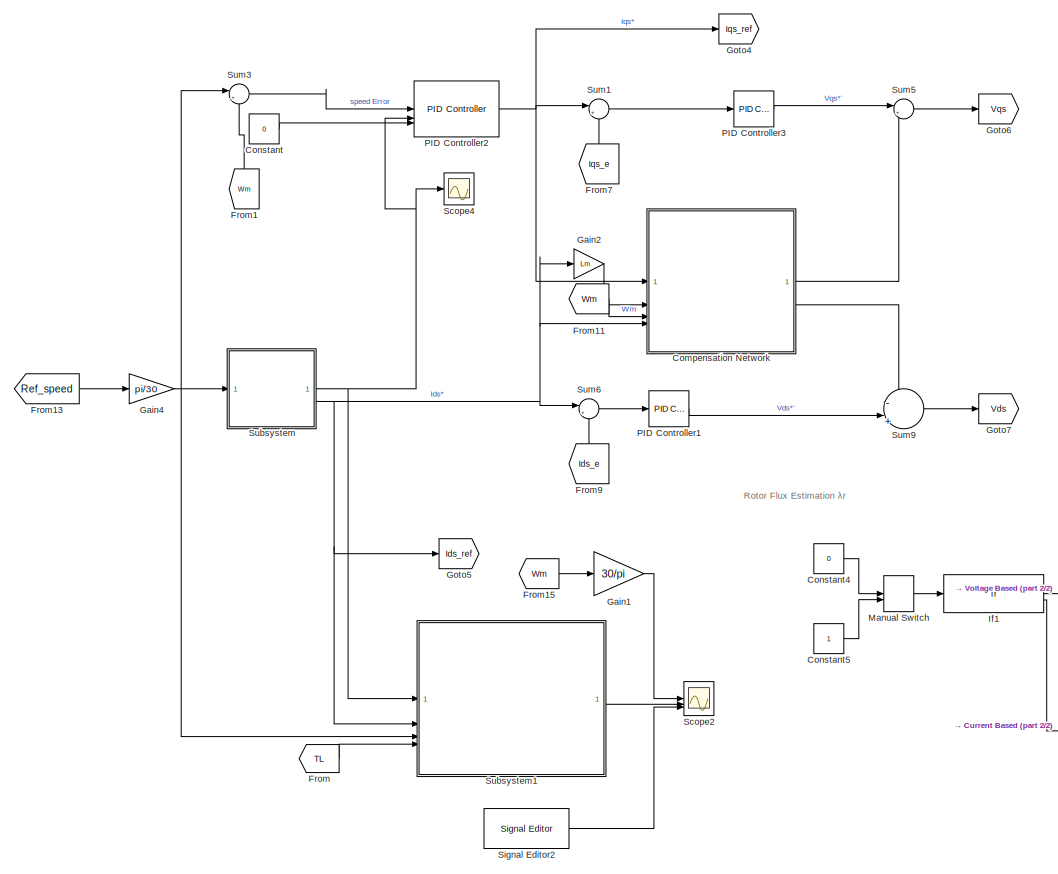
[diagram: root canvas - part 1/2, left side, full height]
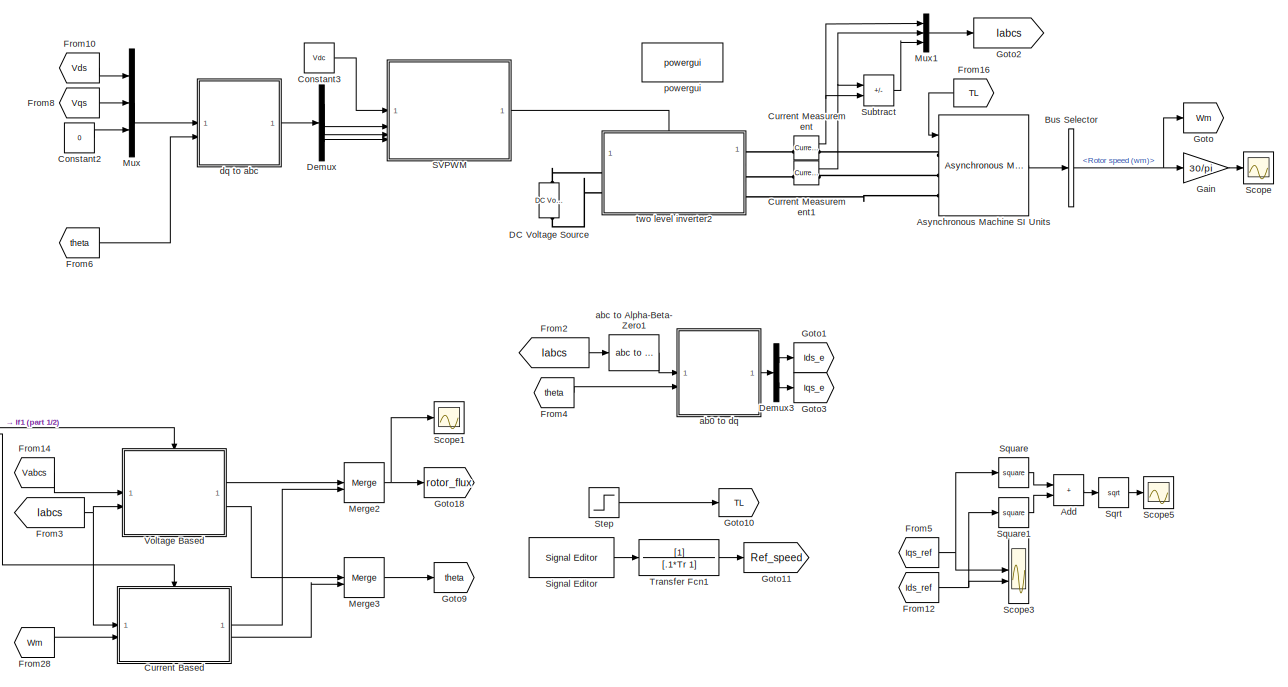
[diagram: root canvas - part 2/2, right side, full height]
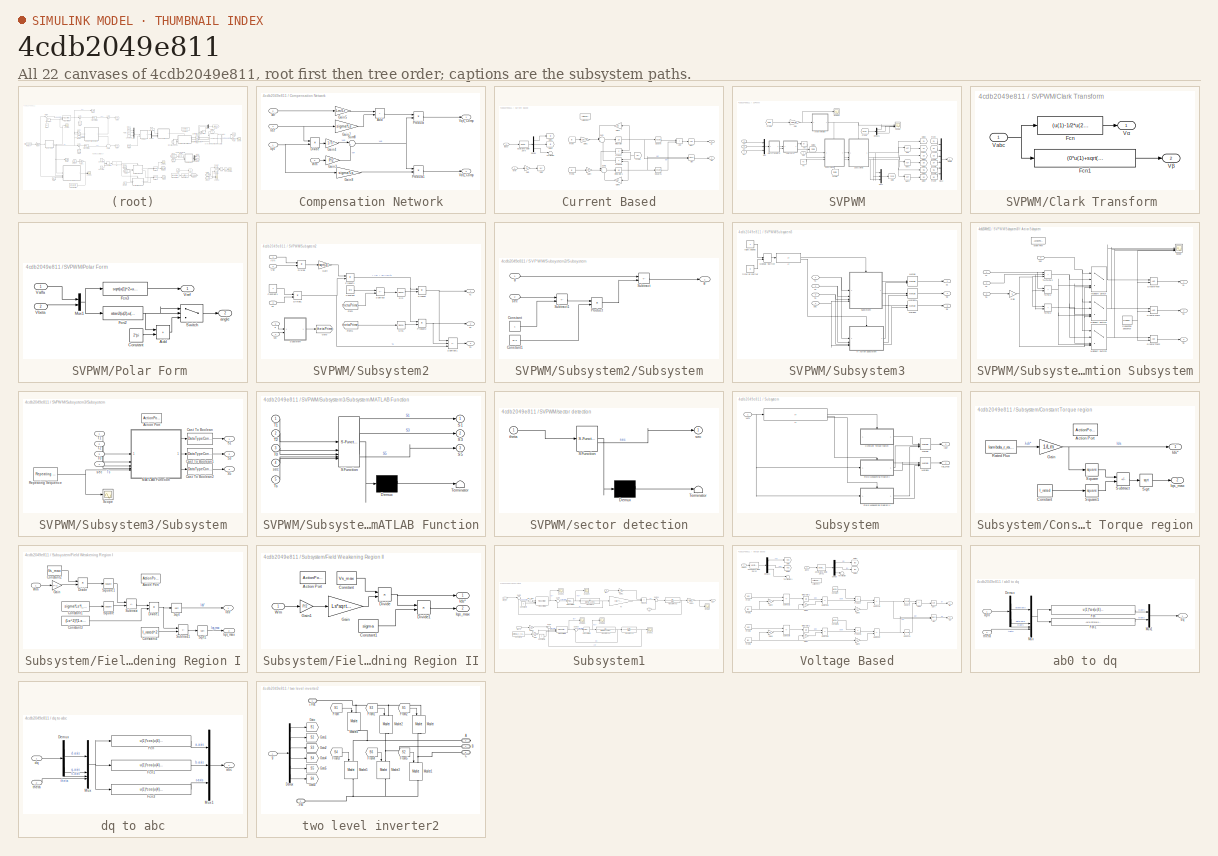
[diagram: thumbnail index - all 22 canvases of the model, root first then tree order]
MODEL slx_4cdb2049e811
KIND model
CONFIG AbsTol = auto
CONFIG EnableMultiTasking = off
CONFIG FixedStep = auto
CONFIG MaxStep = .00001
CONFIG MinStep = auto
CONFIG RelTol = .00001
CONFIG SampleTimeConstraint = Unconstrained
CONFIG SolverName = VariableStepAuto
CONFIG StartTime = 0.0
CONFIG StopTime = 12
BLOCK [Sum] Add
  IconShape = rectangular
BLOCK [Reference] Asynchronous Machine SI Units  REF=spsAsynchronousMachineSIUnitsLib/Asynchronous Machine
SI Units
  SourceBlock = spsAsynchronousMachineSIUnitsLib/Asynchronous Machine\nSI Units
  SourceType = Asynchronous Machine
BLOCK [BusSelector] Bus Selector
  OutputSignals = Mechanical.Rotor speed (wm)
BLOCK [SubSystem] Compensation Network
BLOCK [Sum] Compensation Network/Add
  IconShape = rectangular
  NameLocation = top
BLOCK [Product] Compensation Network/Divide
  Inputs = /*
  NameLocation = top
BLOCK [Gain] Compensation Network/Gain3
  Gain = P/2
  NameLocation = top
BLOCK [Gain] Compensation Network/Gain4
  Gain = 1/Tr
  NameLocation = top
BLOCK [Gain] Compensation Network/Gain5
  Gain = Lm/Lr
  NameLocation = top
BLOCK [Gain] Compensation Network/Gain7
  Gain = sigma*Ls
  NameLocation = top
BLOCK [Gain] Compensation Network/Gain8
  Gain = sigma*Ls
  NameLocation = top
BLOCK [Inport] Compensation Network/Ids*
  Port = 4
BLOCK [Inport] Compensation Network/Iqs*
BLOCK [Product] Compensation Network/Product
BLOCK [Product] Compensation Network/Product1
BLOCK [Sum] Compensation Network/Sum8
  Inputs = |++
  NameLocation = top
BLOCK [Outport] Compensation Network/Vds_Comp
  Port = 2
BLOCK [Outport] Compensation Network/Vqs_Comp
BLOCK [Inport] Compensation Network/Wm
  Port = 3
BLOCK [Inport] Compensation Network/λdr
  Port = 2
BLOCK [Constant] Constant
  Value = 0
BLOCK [Constant] Constant2
  Value = 0
BLOCK [Constant] Constant3
  Value = Vdc
BLOCK [Constant] Constant4
  Value = 0
BLOCK [Constant] Constant5
BLOCK [SubSystem] Current Based
BLOCK [ActionPort] Current Based/Action Port
  ActionPortLabel = else
BLOCK [Sum] Current Based/Add
  IconShape = rectangular
BLOCK [Trigonometry] Current Based/Atan
  Operator = atan2
BLOCK [Demux] Current Based/Demux
  Outputs = 3
BLOCK [From] Current Based/From
  GotoTag = Id
BLOCK [From] Current Based/From1
  GotoTag = Iq
BLOCK [From] Current Based/From2
  GotoTag = Wr
  NameLocation = top
BLOCK [Gain] Current Based/Gain
  Gain = P/2
BLOCK [Gain] Current Based/Gain1
  Gain = Lm/Tr
BLOCK [Gain] Current Based/Gain2
  Gain = 1/Tr
  NameLocation = top
BLOCK [Gain] Current Based/Gain4
  Gain = Lm/Tr
BLOCK [Gain] Current Based/Gain5
  Gain = 1/Tr
  NameLocation = top
BLOCK [Goto] Current Based/Goto
  GotoTag = Wr
BLOCK [Goto] Current Based/Goto1
  GotoTag = Id
BLOCK [Goto] Current Based/Goto2
  GotoTag = Iq
BLOCK [Inport] Current Based/Iabcs
BLOCK [Integrator] Current Based/Integrator
BLOCK [Integrator] Current Based/Integrator1
BLOCK [Product] Current Based/Product
  NameLocation = top
BLOCK [Product] Current Based/Product1
  NameLocation = top
BLOCK [Sqrt] Current Based/Sqrt
BLOCK [Math] Current Based/Square
  Operator = square
BLOCK [Math] Current Based/Square1
  Operator = square
BLOCK [Sum] Current Based/Sum
  Inputs = |-+|-
BLOCK [Sum] Current Based/Sum1
  Inputs = |++|-
BLOCK [Terminator] Current Based/Terminator
BLOCK [Inport] Current Based/Wm
  Port = 2
BLOCK [Reference] Current Based/abc to Alpha-Beta-Zero  REF=spsabctoAlphaBetaZeroLib/abc to
Alpha-Beta-Zero
  LibrarySourceBlock = sps_lib/Control/abc to\nAlpha-Beta-Zero
  SourceBlock = spsabctoAlphaBetaZeroLib/abc to\nAlpha-Beta-Zero
  SourceType = abc to Alpha-Beta-Zero Transformation
BLOCK [Outport] Current Based/θe
  Port = 2
BLOCK [Outport] Current Based/φr
BLOCK [Reference] Current Measurement  REF=spsCurrentMeasurementLib/Current Measurement
  LibrarySourceBlock = sps_lib/Sensors and Measurements/Current Measurement
  SourceBlock = spsCurrentMeasurementLib/Current Measurement
  SourceType = Current Measurement
  UserDataPersistent = on
BLOCK [Reference] Current Measurement1  REF=spsCurrentMeasurementLib/Current Measurement
  LibrarySourceBlock = sps_lib/Sensors and Measurements/Current Measurement
  SourceBlock = spsCurrentMeasurementLib/Current Measurement
  SourceType = Current Measurement
  UserDataPersistent = on
BLOCK [Reference] DC Voltage Source  REF=spsDCVoltageSourceLib/DC Voltage Source
  LibrarySourceBlock = sps_lib/Sources/DC Voltage Source
  SourceBlock = spsDCVoltageSourceLib/DC Voltage Source
  SourceType = DC Voltage Source
BLOCK [Demux] Demux
  Outputs = 3
BLOCK [Demux] Demux3
  Outputs = 2
BLOCK [From] From
  GotoTag = TL
BLOCK [From] From1
  GotoTag = Wm
  NameLocation = right
BLOCK [From] From10
  GotoTag = Vds
  NameLocation = top
BLOCK [From] From11
  GotoTag = Wm
  NameLocation = top
BLOCK [From] From12
  GotoTag = Ids_ref
BLOCK [From] From13
  GotoTag = Ref_speed
  NameLocation = top
BLOCK [From] From14
  Commented = on
  GotoTag = Vabcs
  TagVisibility = global
BLOCK [From] From15
  GotoTag = Wm
BLOCK [From] From16
  GotoTag = TL
  NameLocation = top
BLOCK [From] From2
  GotoTag = Iabcs
BLOCK [From] From28
  GotoTag = Wm
BLOCK [From] From3
  GotoTag = Iabcs
BLOCK [From] From4
  GotoTag = theta
BLOCK [From] From5
  GotoTag = Iqs_ref
BLOCK [From] From6
  GotoTag = theta
BLOCK [From] From7
  GotoTag = Iqs_e
  NameLocation = right
BLOCK [From] From8
  GotoTag = Vqs
  NameLocation = top
BLOCK [From] From9
  GotoTag = Ids_e
  NameLocation = right
BLOCK [Gain] Gain
  Gain = 30/pi
BLOCK [Gain] Gain1
  Gain = 30/pi
BLOCK [Gain] Gain2
  Gain = Lm
BLOCK [Gain] Gain4
  Gain = pi/30
  NameLocation = top
BLOCK [Goto] Goto
  GotoTag = Wm
BLOCK [Goto] Goto1
  GotoTag = Ids_e
BLOCK [Goto] Goto10
  GotoTag = TL
BLOCK [Goto] Goto11
  GotoTag = Ref_speed
BLOCK [Goto] Goto18
  GotoTag = rotor_flux
BLOCK [Goto] Goto2
  GotoTag = Iabcs
BLOCK [Goto] Goto3
  GotoTag = Iqs_e
BLOCK [Goto] Goto4
  GotoTag = Iqs_ref
BLOCK [Goto] Goto5
  GotoTag = Ids_ref
BLOCK [Goto] Goto6
  GotoTag = Vqs
  NameLocation = top
BLOCK [Goto] Goto7
  GotoTag = Vds
  NameLocation = top
BLOCK [Goto] Goto9
  GotoTag = theta
BLOCK [If] If1
  IfExpression = u1 == 0
BLOCK [ManualSwitch] Manual Switch
  CurrentSetting = 0
BLOCK [Merge] Merge2
BLOCK [Merge] Merge3
BLOCK [Mux] Mux
  DisplayOption = bar
  Inputs = 3
BLOCK [Mux] Mux1
  DisplayOption = bar
  Inputs = 3
BLOCK [Reference] PID Controller1  REF=slpidlib/PID Controller
  LibrarySourceBlock = simulink/Continuous/PID Controller
  SourceBlock = slpidlib/PID Controller
  SourceType = PID 1dof
BLOCK [Reference] PID Controller2  REF=slpidlib/PID Controller
  LibrarySourceBlock = simulink/Continuous/PID Controller
  SourceBlock = slpidlib/PID Controller
  SourceType = PID 1dof
BLOCK [Reference] PID Controller3  REF=slpidlib/PID Controller
  LibrarySourceBlock = simulink/Continuous/PID Controller
  SourceBlock = slpidlib/PID Controller
  SourceType = PID 1dof
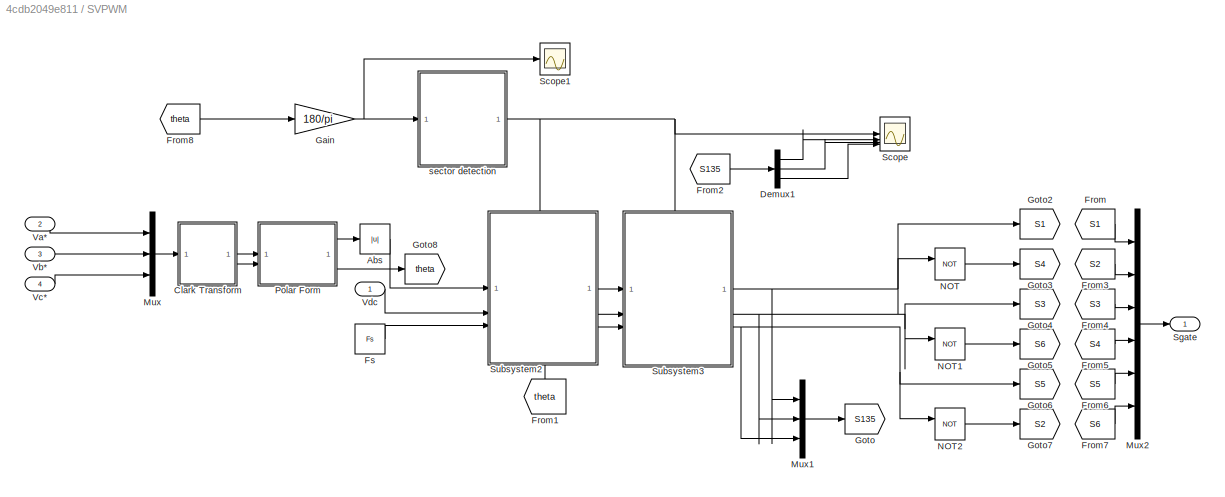
BLOCK [SubSystem] SVPWM
BLOCK [Abs] SVPWM/Abs
  SaturateOnIntegerOverflow = off
BLOCK [SubSystem] SVPWM/Clark Transform 
BLOCK [Fcn] SVPWM/Clark Transform /Fcn
  Expr = (u(1)-1/2*u(2)-1/2*u(3))
BLOCK [Fcn] SVPWM/Clark Transform /Fcn1
  Expr = (0*u(1)+sqrt(3)/2*u(2)-sqrt(3)/2*u(3))
BLOCK [Inport] SVPWM/Clark Transform /Vabc 
BLOCK [Outport] SVPWM/Clark Transform /Vα
  VectorParamsAs1DForOutWhenUnconnected = off
BLOCK [Outport] SVPWM/Clark Transform /Vβ
  Port = 2
  VectorParamsAs1DForOutWhenUnconnected = off
BLOCK [Demux] SVPWM/Demux1
  Outputs = 3
BLOCK [From] SVPWM/From
  GotoTag = S1
BLOCK [From] SVPWM/From1
  GotoTag = theta
  NameLocation = right
BLOCK [From] SVPWM/From2
  GotoTag = S135
BLOCK [From] SVPWM/From3
  GotoTag = S2
BLOCK [From] SVPWM/From4
  GotoTag = S3
BLOCK [From] SVPWM/From5
  GotoTag = S4
BLOCK [From] SVPWM/From6
  GotoTag = S5
BLOCK [From] SVPWM/From7
  GotoTag = S6
BLOCK [From] SVPWM/From8
  GotoTag = theta
BLOCK [Constant] SVPWM/Fs
  Value = Fs
BLOCK [Gain] SVPWM/Gain
  Gain = 180/pi
BLOCK [Goto] SVPWM/Goto
  GotoTag = S135
BLOCK [Goto] SVPWM/Goto2
  GotoTag = S1
BLOCK [Goto] SVPWM/Goto3
  GotoTag = S4
BLOCK [Goto] SVPWM/Goto4
  GotoTag = S3
BLOCK [Goto] SVPWM/Goto5
  GotoTag = S6
BLOCK [Goto] SVPWM/Goto6
  GotoTag = S5
BLOCK [Goto] SVPWM/Goto7
  GotoTag = S2
BLOCK [Goto] SVPWM/Goto8
  GotoTag = theta
BLOCK [Mux] SVPWM/Mux
  DisplayOption = bar
  Inputs = 3
BLOCK [Mux] SVPWM/Mux1
  DisplayOption = bar
  Inputs = 3
BLOCK [Mux] SVPWM/Mux2
  DisplayOption = bar
  Inputs = 6
BLOCK [Logic] SVPWM/NOT
  AllPortsSameDT = off
  IconShape = distinctive
  Operator = NOT
  OutDataTypeStr = boolean
BLOCK [Logic] SVPWM/NOT1
  AllPortsSameDT = off
  IconShape = distinctive
  Operator = NOT
  OutDataTypeStr = boolean
BLOCK [Logic] SVPWM/NOT2
  AllPortsSameDT = off
  IconShape = distinctive
  Operator = NOT
  OutDataTypeStr = boolean
BLOCK [SubSystem] SVPWM/Polar Form 
BLOCK [Sum] SVPWM/Polar Form /Add
  IconShape = rectangular
BLOCK [Constant] SVPWM/Polar Form /Constant
  Value = 2*pi
BLOCK [Fcn] SVPWM/Polar Form /Fcn2
  Expr = atan2(u(2),u(1))
BLOCK [Fcn] SVPWM/Polar Form /Fcn3
  Expr = sqrt(u(1)^2+u(2)^2)
BLOCK [Mux] SVPWM/Polar Form /Mux1
  DisplayOption = bar
  Inputs = 2
BLOCK [Switch] SVPWM/Polar Form /Switch
  Criteria = u2 > Threshold
  InputSameDT = off
  SaturateOnIntegerOverflow = off
BLOCK [Inport] SVPWM/Polar Form /Valfa
BLOCK [Inport] SVPWM/Polar Form /Vbeta
  Port = 2
BLOCK [Outport] SVPWM/Polar Form /Vref
  VectorParamsAs1DForOutWhenUnconnected = off
BLOCK [Outport] SVPWM/Polar Form /angle
  Port = 2
  VectorParamsAs1DForOutWhenUnconnected = off
BLOCK [Scope] SVPWM/Scope
  Floating = off
  NumInputPorts = 4
  ScopeSpecificationString = Simulink.scopes.TimeScopeBlockCfg('CurrentConfiguration', extmgr.ConfigurationSet(extmgr.Configuration('Core','General UI',true),extmgr.Configuration('Core','Source UI',true),extmgr.Configuration('Sources','WiredSimulink',true,'DataLoggingVariableName','ScopeData3'),extmgr.Configuration('Visuals','Time Domain',true,'SerializedDisplays',{struct('MinYLimReal','-0.375','MaxYLimReal','3.375','YLabelRe...<+3485ch>
BLOCK [Scope] SVPWM/Scope1
  Floating = off
  NumInputPorts = 1
  ScopeSpecificationString = Simulink.scopes.TimeScopeBlockCfg('CurrentConfiguration', extmgr.ConfigurationSet(extmgr.Configuration('Core','General UI',true),extmgr.Configuration('Core','Source UI',true),extmgr.Configuration('Sources','WiredSimulink',true,'DataLoggingVariableName','ScopeData2'),extmgr.Configuration('Visuals','Time Domain',true,'SerializedDisplays',{struct('MinYLimReal','-45.00000','MaxYLimReal','405.00000','Y...<+1392ch>
BLOCK [Outport] SVPWM/Sgate
BLOCK [SubSystem] SVPWM/Subsystem2
  PortSchema = {"entries":[{"content":{"sides":[{"content":{"connectorIds":["In1","In2","In3"]},"type":"ConnectorPlacement.EquallySpacedRectSide","uuid":"13f95eee-8106-4f2d-b5f9-665b5c53ca49"},{"content":{"connectorIds":["Out1","Out2","Out3"],"side":"RIGHT"},"type":"ConnectorPlacement.EquallySpacedRectSide","uuid":"3e078310-26cc-4d9c-be70-8da9dd20e061"},{"content":{"connectorIds":["In4"],"side":"TOP"},"type":"Co...<+420ch>
BLOCK [Inport] SVPWM/Subsystem2/ θ
  Port = 5
BLOCK [Constant] SVPWM/Subsystem2/Constant
  Value = pi/3
BLOCK [Constant] SVPWM/Subsystem2/Constant1
BLOCK [Product] SVPWM/Subsystem2/Divide
  Inputs = */
BLOCK [Product] SVPWM/Subsystem2/Divide1
  Inputs = */
BLOCK [From] SVPWM/Subsystem2/From
  GotoTag = thetaPrime
BLOCK [From] SVPWM/Subsystem2/From1
  GotoTag = thetaPrime
BLOCK [Inport] SVPWM/Subsystem2/Fs
  Port = 3
BLOCK [Gain] SVPWM/Subsystem2/Gain
  Gain = sqrt(3)
BLOCK [Goto] SVPWM/Subsystem2/Goto
  GotoTag = thetaPrime
BLOCK [Product] SVPWM/Subsystem2/Product
BLOCK [Product] SVPWM/Subsystem2/Product1
BLOCK [Product] SVPWM/Subsystem2/Product2
BLOCK [Trigonometry] SVPWM/Subsystem2/Sin
BLOCK [Trigonometry] SVPWM/Subsystem2/Sin1
BLOCK [SubSystem] SVPWM/Subsystem2/Subsystem
BLOCK [Constant] SVPWM/Subsystem2/Subsystem/Constant
BLOCK [Constant] SVPWM/Subsystem2/Subsystem/Constant1
  Value = pi/3
BLOCK [Product] SVPWM/Subsystem2/Subsystem/Product
BLOCK [Sum] SVPWM/Subsystem2/Subsystem/Subtract
  IconShape = rectangular
  Inputs = +-
BLOCK [Sum] SVPWM/Subsystem2/Subsystem/Subtract1
  IconShape = rectangular
  Inputs = +-
BLOCK [Inport] SVPWM/Subsystem2/Subsystem/sec
  Port = 2
BLOCK [Inport] SVPWM/Subsystem2/Subsystem/θ
BLOCK [Outport] SVPWM/Subsystem2/Subsystem/θ`
BLOCK [Sum] SVPWM/Subsystem2/Subtract
  IconShape = rectangular
  Inputs = +-
BLOCK [Sum] SVPWM/Subsystem2/Subtract1
  IconShape = rectangular
  Inputs = --+
BLOCK [Outport] SVPWM/Subsystem2/T0
  Port = 3
BLOCK [Outport] SVPWM/Subsystem2/T1
BLOCK [Outport] SVPWM/Subsystem2/T2
  Port = 2
BLOCK [Inport] SVPWM/Subsystem2/Vdc
  Port = 2
BLOCK [Inport] SVPWM/Subsystem2/sec
  Port = 4
BLOCK [Inport] SVPWM/Subsystem2/|Vr|
BLOCK [SubSystem] SVPWM/Subsystem3
  PortSchema = {"entries":[{"content":{"sides":[{"content":{"connectorIds":["In1","In2","In3"]},"type":"ConnectorPlacement.EquallySpacedRectSide","uuid":"6c42d831-0426-4967-81f5-911cdfb3d9a5"},{"content":{"connectorIds":["Out1","Out2","Out3"],"side":"RIGHT"},"type":"ConnectorPlacement.EquallySpacedRectSide","uuid":"75f77ef2-8b2a-4026-a5e0-70e2e431df99"},{"content":{"connectorIds":["In4"],"side":"TOP"},"type":"Co...<+397ch>
BLOCK [If] SVPWM/Subsystem3/If
  IfExpression = u1 == 1
BLOCK [SubSystem] SVPWM/Subsystem3/If Action Subsystem
  TreatAsAtomicUnit = on
BLOCK [ActionPort] SVPWM/Subsystem3/If Action Subsystem/Action Port
  ActionPortLabel = else
BLOCK [Gain] SVPWM/Subsystem3/If Action Subsystem/Gain
  Gain = .5
BLOCK [RelationalOperator] SVPWM/Subsystem3/If Action Subsystem/GreaterThan
  InputSameDT = off
  OutDataTypeStr = boolean
  RndMeth = Simplest
BLOCK [RelationalOperator] SVPWM/Subsystem3/If Action Subsystem/GreaterThan1
  InputSameDT = off
  OutDataTypeStr = boolean
  RndMeth = Simplest
BLOCK [RelationalOperator] SVPWM/Subsystem3/If Action Subsystem/GreaterThan2
  InputSameDT = off
  OutDataTypeStr = boolean
  RndMeth = Simplest
BLOCK [MultiPortSwitch] SVPWM/Subsystem3/If Action Subsystem/Multiport Switch
  DataPortIndices = {[1,6],2,5,[3,4]}
  DataPortOrder = Specify indices
  InputSameDT = off
  SaturateOnIntegerOverflow = off
BLOCK [MultiPortSwitch] SVPWM/Subsystem3/If Action Subsystem/Multiport Switch1
  DataPortIndices = {[2,3],1,4,[5,6]}
  DataPortOrder = Specify indices
  InputSameDT = off
  SaturateOnIntegerOverflow = off
BLOCK [MultiPortSwitch] SVPWM/Subsystem3/If Action Subsystem/Multiport Switch2
  DataPortIndices = {[4,5],3,6,[1,2]}
  DataPortOrder = Specify indices
  InputSameDT = off
  SaturateOnIntegerOverflow = off
BLOCK [Reference] SVPWM/Subsystem3/If Action Subsystem/Repeating Sequence  REF=simulink/Sources/Repeating
Sequence
  SourceBlock = simulink/Sources/Repeating\nSequence
  SourceType = Repeating table
BLOCK [Outport] SVPWM/Subsystem3/If Action Subsystem/S1
BLOCK [Outport] SVPWM/Subsystem3/If Action Subsystem/S3
  Port = 2
BLOCK [Outport] SVPWM/Subsystem3/If Action Subsystem/S5
  Port = 3
BLOCK [Scope] SVPWM/Subsystem3/If Action Subsystem/Scope
  Floating = off
  NumInputPorts = 4
  ScopeSpecificationString = Simulink.scopes.TimeScopeBlockCfg('CurrentConfiguration', extmgr.ConfigurationSet(extmgr.Configuration('Core','General UI',true),extmgr.Configuration('Core','Source UI',true),extmgr.Configuration('Sources','WiredSimulink',true,'DataLoggingVariableName','ScopeData1'),extmgr.Configuration('Visuals','Time Domain',true,'SerializedDisplays',{struct('MinYLimReal','-962121447.62453','MaxYLimReal','106902...<+3671ch>
BLOCK [Inport] SVPWM/Subsystem3/If Action Subsystem/T0
  Port = 3
BLOCK [Inport] SVPWM/Subsystem3/If Action Subsystem/T1
BLOCK [Sum] SVPWM/Subsystem3/If Action Subsystem/T1+T0//2
  IconShape = rectangular
BLOCK [Sum] SVPWM/Subsystem3/If Action Subsystem/T1+T2+T0//2
  IconShape = rectangular
  Inputs = +++
BLOCK [Inport] SVPWM/Subsystem3/If Action Subsystem/T2
  Port = 2
BLOCK [Sum] SVPWM/Subsystem3/If Action Subsystem/T2+T0//2
  IconShape = rectangular
BLOCK [Inport] SVPWM/Subsystem3/If Action Subsystem/sec
  Port = 4
BLOCK [ManualSwitch] SVPWM/Subsystem3/Manual Switch
BLOCK [Merge] SVPWM/Subsystem3/Merge
BLOCK [Merge] SVPWM/Subsystem3/Merge1
BLOCK [Merge] SVPWM/Subsystem3/Merge2
BLOCK [Outport] SVPWM/Subsystem3/S1
BLOCK [Outport] SVPWM/Subsystem3/S3
  Port = 2
BLOCK [Outport] SVPWM/Subsystem3/S5
  Port = 3
BLOCK [SubSystem] SVPWM/Subsystem3/Subsystem
BLOCK [ActionPort] SVPWM/Subsystem3/Subsystem/Action Port
  ActionPortLabel = if(u1 == 1)
BLOCK [DataTypeConversion] SVPWM/Subsystem3/Subsystem/Cast To Boolean
  OutDataTypeStr = boolean
  RndMeth = Floor
  SaturateOnIntegerOverflow = off
BLOCK [DataTypeConversion] SVPWM/Subsystem3/Subsystem/Cast To Boolean1
  OutDataTypeStr = boolean
  RndMeth = Floor
  SaturateOnIntegerOverflow = off
BLOCK [DataTypeConversion] SVPWM/Subsystem3/Subsystem/Cast To Boolean2
  OutDataTypeStr = boolean
  RndMeth = Floor
  SaturateOnIntegerOverflow = off
BLOCK [SubSystem] SVPWM/Subsystem3/Subsystem/MATLAB Function
  ErrorFcn = Stateflow.Translate.translate
  LibrarySourceBlock = simulink/User-Defined\nFunctions/MATLAB Function
  PermitHierarchicalResolution = ExplicitOnly
  SFBlockType = MATLAB Function
  TreatAsAtomicUnit = on
BLOCK [Demux] SVPWM/Subsystem3/Subsystem/MATLAB Function/ Demux 
  Outputs = 1
BLOCK [S-Function] SVPWM/Subsystem3/Subsystem/MATLAB Function/ SFunction 
  EnableBusSupport = on
  FunctionName = sf_sfun
  PortCounts = [5 4]
  SFcnIsStateOwnerBlock = off
  SFunctionDeploymentMode = off
  Tag = Stateflow S-Function 5
BLOCK [Terminator] SVPWM/Subsystem3/Subsystem/MATLAB Function/ Terminator 
BLOCK [Outport] SVPWM/Subsystem3/Subsystem/MATLAB Function/S1
BLOCK [Outport] SVPWM/Subsystem3/Subsystem/MATLAB Function/S3
  Port = 2
BLOCK [Outport] SVPWM/Subsystem3/Subsystem/MATLAB Function/S5
  Port = 3
BLOCK [Inport] SVPWM/Subsystem3/Subsystem/MATLAB Function/T0
  Port = 3
BLOCK [Inport] SVPWM/Subsystem3/Subsystem/MATLAB Function/T1
BLOCK [Inport] SVPWM/Subsystem3/Subsystem/MATLAB Function/T2
  Port = 2
BLOCK [Inport] SVPWM/Subsystem3/Subsystem/MATLAB Function/Ts
  Port = 5
BLOCK [Inport] SVPWM/Subsystem3/Subsystem/MATLAB Function/sec
  Port = 4
BLOCK [Reference] SVPWM/Subsystem3/Subsystem/Repeating Sequence  REF=simulink/Sources/Repeating
Sequence
  SourceBlock = simulink/Sources/Repeating\nSequence
  SourceType = Repeating table
BLOCK [Outport] SVPWM/Subsystem3/Subsystem/S1
BLOCK [Outport] SVPWM/Subsystem3/Subsystem/S3
  Port = 2
BLOCK [Outport] SVPWM/Subsystem3/Subsystem/S5
  Port = 3
BLOCK [Scope] SVPWM/Subsystem3/Subsystem/Scope
  Floating = off
  NumInputPorts = 1
  ScopeSpecificationString = Simulink.scopes.TimeScopeBlockCfg('CurrentConfiguration', extmgr.ConfigurationSet(extmgr.Configuration('Core','General UI',true),extmgr.Configuration('Core','Source UI',true),extmgr.Configuration('Sources','WiredSimulink',true,'DataLoggingVariableName','ScopeData1'),extmgr.Configuration('Visuals','Time Domain',true,'SerializedDisplays',{struct('MinYLimReal','-0.00002','MaxYLimReal','0.00022','YLab...<+1409ch>
BLOCK [Inport] SVPWM/Subsystem3/Subsystem/T0
  Port = 3
BLOCK [Inport] SVPWM/Subsystem3/Subsystem/T1
BLOCK [Inport] SVPWM/Subsystem3/Subsystem/T2
  Port = 2
BLOCK [Inport] SVPWM/Subsystem3/Subsystem/sec
  Port = 4
BLOCK [Inport] SVPWM/Subsystem3/T0
  Port = 3
BLOCK [Inport] SVPWM/Subsystem3/T1
BLOCK [Inport] SVPWM/Subsystem3/T2
  Port = 2
BLOCK [Constant] SVPWM/Subsystem3/logic based
BLOCK [Inport] SVPWM/Subsystem3/sec
  Port = 4
BLOCK [Constant] SVPWM/Subsystem3/time Vs carrier
  Value = 0
BLOCK [Inport] SVPWM/Va*
  Port = 2
BLOCK [Inport] SVPWM/Vb*
  Port = 3
BLOCK [Inport] SVPWM/Vc*
  Port = 4
BLOCK [Inport] SVPWM/Vdc
BLOCK [SubSystem] SVPWM/sector detection
  ErrorFcn = Stateflow.Translate.translate
  LibrarySourceBlock = simulink/User-Defined\nFunctions/MATLAB Function
  PermitHierarchicalResolution = ExplicitOnly
  SFBlockType = MATLAB Function
  TreatAsAtomicUnit = on
BLOCK [Demux] SVPWM/sector detection/ Demux 
  Outputs = 1
BLOCK [S-Function] SVPWM/sector detection/ SFunction 
  EnableBusSupport = on
  FunctionName = sf_sfun
  PortCounts = [1 2]
  SFcnIsStateOwnerBlock = off
  SFunctionDeploymentMode = off
  Tag = Stateflow S-Function 6
BLOCK [Terminator] SVPWM/sector detection/ Terminator 
BLOCK [Outport] SVPWM/sector detection/sec
BLOCK [Inport] SVPWM/sector detection/theta
BLOCK [Scope] Scope
  Floating = off
  NumInputPorts = 1
  ScopeSpecificationString = Simulink.scopes.TimeScopeBlockCfg('CurrentConfiguration', extmgr.ConfigurationSet(extmgr.Configuration('Core','General UI',true),extmgr.Configuration('Core','Source UI',true),extmgr.Configuration('Sources','WiredSimulink',true,'DataLoggingVariableName','ScopeData1'),extmgr.Configuration('Visuals','Time Domain',true,'SerializedDisplays',{struct('MinYLimReal','-125.87909','MaxYLimReal','1132.91179',...<+1460ch>
BLOCK [Scope] Scope1
  Floating = off
  NumInputPorts = 1
  ScopeSpecificationString = Simulink.scopes.TimeScopeBlockCfg('CurrentConfiguration', extmgr.ConfigurationSet(extmgr.Configuration('Core','General UI',true),extmgr.Configuration('Core','Source UI',true),extmgr.Configuration('Sources','WiredSimulink',true,'DataLoggingVariableName','ScopeData6'),extmgr.Configuration('Visuals','Time Domain',true,'SerializedDisplays',{struct('MinYLimReal','0.63879','MaxYLimReal','0.73234','YLabe...<+1407ch>
BLOCK [Scope] Scope2
  Floating = off
  NumInputPorts = 3
  ScopeSpecificationString = Simulink.scopes.TimeScopeBlockCfg('CurrentConfiguration', extmgr.ConfigurationSet(extmgr.Configuration('Core','General UI',true),extmgr.Configuration('Core','Source UI',true),extmgr.Configuration('Sources','WiredSimulink',true,'DataLoggingVariableName','ScopeData3'),extmgr.Configuration('Visuals','Time Domain',true,'SerializedDisplays',{struct('MinYLimReal','-608.14018','MaxYLimReal','3957.22561',...<+1827ch>
BLOCK [Scope] Scope3
  Floating = off
  NumInputPorts = 2
  ScopeSpecificationString = Simulink.scopes.TimeScopeBlockCfg('CurrentConfiguration', extmgr.ConfigurationSet(extmgr.Configuration('Core','General UI',true),extmgr.Configuration('Core','Source UI',true),extmgr.Configuration('Sources','WiredSimulink',true,'DataLoggingVariableName','ScopeData1'),extmgr.Configuration('Visuals','Time Domain',true,'SerializedDisplays',{struct('MinYLimReal','-0.66303','MaxYLimReal','5.96723','YLab...<+2038ch>
BLOCK [Scope] Scope4
  Floating = off
  NumInputPorts = 1
  ScopeSpecificationString = Simulink.scopes.TimeScopeBlockCfg('CurrentConfiguration', extmgr.ConfigurationSet(extmgr.Configuration('Core','General UI',true),extmgr.Configuration('Core','Source UI',true),extmgr.Configuration('Sources','WiredSimulink',true,'DataLoggingVariableName','ScopeData1'),extmgr.Configuration('Visuals','Time Domain',true,'SerializedDisplays',{struct('MinYLimReal','2.70975','MaxYLimReal','4.84213','YLabe...<+1412ch>
BLOCK [Scope] Scope5
  Floating = off
  NumInputPorts = 1
  ScopeSpecificationString = Simulink.scopes.TimeScopeBlockCfg('CurrentConfiguration', extmgr.ConfigurationSet(extmgr.Configuration('Core','General UI',true),extmgr.Configuration('Core','Source UI',true),extmgr.Configuration('Sources','WiredSimulink',true,'DataLoggingVariableName','ScopeData2'),extmgr.Configuration('Visuals','Time Domain',true,'SerializedDisplays',{struct('MinYLimReal','3.48544','MaxYLimReal','7.60319','YLabe...<+1434ch>
BLOCK [Reference] Signal Editor  REF=SignalEditorBlockLib/Signal Editor
  LibrarySourceBlock = simulink/Sources/Signal Editor
  SourceBlock = SignalEditorBlockLib/Signal Editor
  SourceType = SignalEditor
  UserDataPersistent = on
BLOCK [Reference] Signal Editor2  REF=SignalEditorBlockLib/Signal Editor
  LibrarySourceBlock = simulink/Sources/Signal Editor
  SourceBlock = SignalEditorBlockLib/Signal Editor
  SourceType = SignalEditor
  UserDataPersistent = on
BLOCK [Sqrt] Sqrt
BLOCK [Math] Square
  Operator = square
BLOCK [Math] Square1
  Operator = square
BLOCK [Step] Step
  After = 5
  SampleTime = 0
  Time = 0
BLOCK [SubSystem] Subsystem
BLOCK [SubSystem] Subsystem/Constant Torque region
  TreatAsAtomicUnit = on
BLOCK [ActionPort] Subsystem/Constant Torque region/Action Port
  ActionPortLabel = if(u1 < Wbase_FW_RegionI)
BLOCK [Constant] Subsystem/Constant Torque region/Constant
  Value = I_rated
BLOCK [Gain] Subsystem/Constant Torque region/Gain
  Gain = 1/Lm
BLOCK [Outport] Subsystem/Constant Torque region/Ids*
BLOCK [Outport] Subsystem/Constant Torque region/Iqs_max
  Port = 2
BLOCK [Constant] Subsystem/Constant Torque region/Rated Flux
  Value = lambda_r_rated
BLOCK [Sqrt] Subsystem/Constant Torque region/Sqrt
BLOCK [Math] Subsystem/Constant Torque region/Square
  Operator = square
BLOCK [Math] Subsystem/Constant Torque region/Square1
  Operator = square
BLOCK [Sum] Subsystem/Constant Torque region/Subtract
  IconShape = rectangular
  Inputs = -+
BLOCK [SubSystem] Subsystem/Field Weakening Region I
  TreatAsAtomicUnit = on
BLOCK [ActionPort] Subsystem/Field Weakening Region I/Action Port
  ActionPortLabel = elseif(Wbase_FW_RegionI < u1 < W_BT_RegionII)
BLOCK [Constant] Subsystem/Field Weakening Region I/Constant1
  Value = sigma*Ls*I_rated
BLOCK [Constant] Subsystem/Field Weakening Region I/Constant2
  Value = Vs_max
BLOCK [Constant] Subsystem/Field Weakening Region I/Constant3
  Value = (Ls^2)*(1-sigma)
BLOCK [Constant] Subsystem/Field Weakening Region I/Constant4
  Value = I_rated^2
BLOCK [Product] Subsystem/Field Weakening Region I/Divide
  Inputs = */
BLOCK [Product] Subsystem/Field Weakening Region I/Divide1
  Inputs = */
BLOCK [Gain] Subsystem/Field Weakening Region I/Gain
  Gain = P/2
BLOCK [Outport] Subsystem/Field Weakening Region I/Ids*
BLOCK [Outport] Subsystem/Field Weakening Region I/Iqs_max
  Port = 2
BLOCK [Sqrt] Subsystem/Field Weakening Region I/Sqrt
BLOCK [Sqrt] Subsystem/Field Weakening Region I/Sqrt1
BLOCK [Math] Subsystem/Field Weakening Region I/Square
  Operator = square
BLOCK [Math] Subsystem/Field Weakening Region I/Square1
  Operator = square
BLOCK [Sum] Subsystem/Field Weakening Region I/Subtract
  IconShape = rectangular
  Inputs = +-
BLOCK [Sum] Subsystem/Field Weakening Region I/Subtract1
  IconShape = rectangular
  Inputs = -+
BLOCK [Inport] Subsystem/Field Weakening Region I/Wm
BLOCK [SubSystem] Subsystem/Field Weakening Region II
  TreatAsAtomicUnit = on
BLOCK [ActionPort] Subsystem/Field Weakening Region II/Action Port
  ActionPortLabel = else
BLOCK [Constant] Subsystem/Field Weakening Region II/Constant
  Value = Vs_max
BLOCK [Constant] Subsystem/Field Weakening Region II/Constant1
  Value = sigma
BLOCK [Product] Subsystem/Field Weakening Region II/Divide
  Inputs = */
BLOCK [Product] Subsystem/Field Weakening Region II/Divide1
  Inputs = */
BLOCK [Gain] Subsystem/Field Weakening Region II/Gain
  Gain = Ls*sqrt(2)
BLOCK [Gain] Subsystem/Field Weakening Region II/Gain1
  Gain = P/2
BLOCK [Outport] Subsystem/Field Weakening Region II/Ids*
BLOCK [Outport] Subsystem/Field Weakening Region II/Iqs_max
  Port = 2
BLOCK [Inport] Subsystem/Field Weakening Region II/Wm
BLOCK [Outport] Subsystem/Ids*
  Port = 2
BLOCK [If] Subsystem/If
  ElseIfExpressions = Wbase_FW_RegionI < u1 < W_BT_RegionII
  IfExpression = u1 < Wbase_FW_RegionI
BLOCK [Outport] Subsystem/Iqs_max
BLOCK [Merge] Subsystem/Merge
  Inputs = 3
BLOCK [Merge] Subsystem/Merge1
  Inputs = 3
BLOCK [Inport] Subsystem/Wm
BLOCK [SubSystem] Subsystem1
BLOCK [Constant] Subsystem1/Constant1
  Value = lambda_r_rated
BLOCK [Constant] Subsystem1/Constant2
  Value = 0
BLOCK [Constant] Subsystem1/Constant4
  Value = 0
BLOCK [Gain] Subsystem1/Gain
  Gain = 1/Lm
BLOCK [Gain] Subsystem1/Gain1
  Gain = Lm
BLOCK [Gain] Subsystem1/Gain3
  Gain = Lm
BLOCK [Gain] Subsystem1/Gain9
  Gain = 30/pi
BLOCK [Inport] Subsystem1/Ids*
  Port = 2
BLOCK [InportShadow] Subsystem1/Ids*2
  Port = 2
BLOCK [Inport] Subsystem1/Iqs_max
BLOCK [Gain] Subsystem1/Kt
  Gain = (3/2)*(P/2)*(Lm/Lr)
BLOCK [Outport] Subsystem1/Nm
BLOCK [Reference] Subsystem1/PID Controller1  REF=slpidlib/PID Controller
  LibrarySourceBlock = simulink/Continuous/PID Controller
  SourceBlock = slpidlib/PID Controller
  SourceType = PID 1dof
BLOCK [Reference] Subsystem1/PID Controller2  REF=slpidlib/PID Controller
  LibrarySourceBlock = simulink/Continuous/PID Controller
  SourceBlock = slpidlib/PID Controller
  SourceType = PID 1dof
BLOCK [Reference] Subsystem1/PID Controller3  REF=slpidlib/PID Controller
  LibrarySourceBlock = simulink/Continuous/PID Controller
  SourceBlock = slpidlib/PID Controller
  SourceType = PID 1dof
BLOCK [Reference] Subsystem1/PID Controller4  REF=slpidlib/PID Controller
  LibrarySourceBlock = simulink/Continuous/PID Controller
  SourceBlock = slpidlib/PID Controller
  SourceType = PID 1dof
BLOCK [Product] Subsystem1/Product2
BLOCK [Scope] Subsystem1/Scope
  Floating = off
  NumInputPorts = 1
  ScopeSpecificationString = Simulink.scopes.TimeScopeBlockCfg('CurrentConfiguration', extmgr.ConfigurationSet(extmgr.Configuration('Core','General UI',true),extmgr.Configuration('Core','Source UI',true),extmgr.Configuration('Sources','WiredSimulink',true,'DataLoggingVariableName','ScopeData1'),extmgr.Configuration('Visuals','Time Domain',true,'SerializedDisplays',{struct('MinYLimReal','-26.72274','MaxYLimReal','221.33115','Y...<+1447ch>
BLOCK [Scope] Subsystem1/Scope1
  Floating = off
  NumInputPorts = 1
  ScopeSpecificationString = Simulink.scopes.TimeScopeBlockCfg('CurrentConfiguration', extmgr.ConfigurationSet(extmgr.Configuration('Core','General UI',true),extmgr.Configuration('Core','Source UI',true),extmgr.Configuration('Sources','WiredSimulink',true,'DataLoggingVariableName','ScopeData1'),extmgr.Configuration('Visuals','Time Domain',true,'SerializedDisplays',{struct('MinYLimReal','-0.08797','MaxYLimReal','0.79173','YLab...<+1435ch>
BLOCK [Scope] Subsystem1/Scope2
  Floating = off
  NumInputPorts = 1
  ScopeSpecificationString = Simulink.scopes.TimeScopeBlockCfg('CurrentConfiguration', extmgr.ConfigurationSet(extmgr.Configuration('Core','General UI',true),extmgr.Configuration('Core','Source UI',true),extmgr.Configuration('Sources','WiredSimulink',true,'DataLoggingVariableName','ScopeData2'),extmgr.Configuration('Visuals','Time Domain',true,'SerializedDisplays',{struct('MinYLimReal','-0.435','MaxYLimReal','3.91496','YLabel...<+1432ch>
BLOCK [Scope] Subsystem1/Scope3
  Floating = off
  NumInputPorts = 1
  ScopeSpecificationString = Simulink.scopes.TimeScopeBlockCfg('CurrentConfiguration', extmgr.ConfigurationSet(extmgr.Configuration('Core','General UI',true),extmgr.Configuration('Core','Source UI',true),extmgr.Configuration('Sources','WiredSimulink',true,'DataLoggingVariableName','ScopeData3'),extmgr.Configuration('Visuals','Time Domain',true,'SerializedDisplays',{struct('MinYLimReal','2.26413','MaxYLimReal','4.26413','YLabe...<+1405ch>
BLOCK [Scope] Subsystem1/Scope4
  Floating = off
  NumInputPorts = 1
  ScopeSpecificationString = Simulink.scopes.TimeScopeBlockCfg('CurrentConfiguration', extmgr.ConfigurationSet(extmgr.Configuration('Core','General UI',true),extmgr.Configuration('Core','Source UI',true),extmgr.Configuration('Sources','WiredSimulink',true,'DataLoggingVariableName','ScopeData5'),extmgr.Configuration('Visuals','Time Domain',true,'SerializedDisplays',{struct('MinYLimReal','-2.66365','MaxYLimReal','23.18732','YLa...<+1440ch>
BLOCK [Scope] Subsystem1/Scope6
  Floating = off
  NumInputPorts = 1
  ScopeSpecificationString = Simulink.scopes.TimeScopeBlockCfg('CurrentConfiguration', extmgr.ConfigurationSet(extmgr.Configuration('Core','General UI',true),extmgr.Configuration('Core','Source UI',true),extmgr.Configuration('Sources','WiredSimulink',true,'DataLoggingVariableName','ScopeData4'),extmgr.Configuration('Visuals','Time Domain',true,'SerializedDisplays',{struct('MinYLimReal','0.52674','MaxYLimReal','45.89058','YLab...<+1438ch>
BLOCK [Sum] Subsystem1/Sum10
  Inputs = |+-
BLOCK [Sum] Subsystem1/Sum11
  Inputs = |+-
BLOCK [Sum] Subsystem1/Sum2
  Inputs = |+-
BLOCK [Sum] Subsystem1/Sum4
  Inputs = |+-
BLOCK [Sum] Subsystem1/Sum7
  Inputs = |+-
BLOCK [Inport] Subsystem1/TL
  Port = 4
BLOCK [TransferFcn] Subsystem1/Transfer Fcn
  Denominator = [sigma*Ls Rs]
BLOCK [TransferFcn] Subsystem1/Transfer Fcn1
  Denominator = [Tr 1]
  Numerator = [Lm]
BLOCK [TransferFcn] Subsystem1/Transfer Fcn3
  Denominator = [J B]
BLOCK [TransferFcn] Subsystem1/Transfer Fcn4
  Denominator = [sigma*Ls Rs]
BLOCK [Inport] Subsystem1/Wm_ref
  Port = 3
BLOCK [Sum] Subtract
  IconShape = rectangular
  Inputs = --
BLOCK [Sum] Sum1
  Inputs = |+-
  NameLocation = top
BLOCK [Sum] Sum3
  Inputs = |+-
  NameLocation = top
BLOCK [Sum] Sum5
  Inputs = |++
  NameLocation = top
BLOCK [Sum] Sum6
  Inputs = |+-
  NameLocation = top
BLOCK [Sum] Sum9
  Inputs = -||+|||
  NameLocation = top
BLOCK [TransferFcn] Transfer Fcn1
  Denominator = [.1*Tr 1]
  NameLocation = top
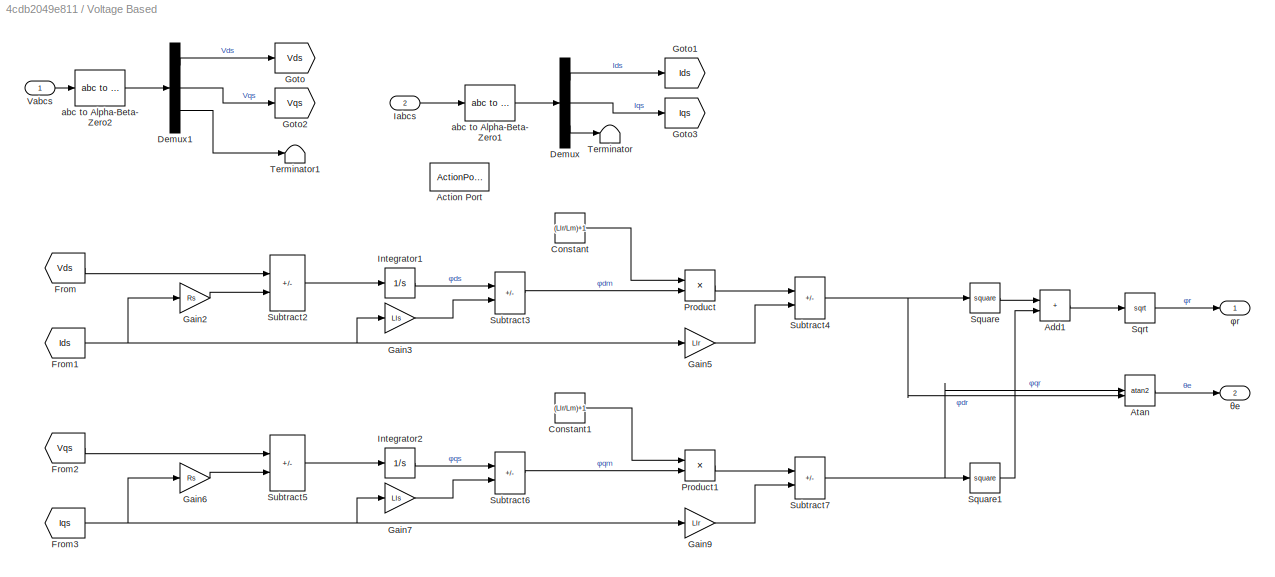
BLOCK [SubSystem] Voltage Based
BLOCK [ActionPort] Voltage Based/Action Port
  ActionPortLabel = if(u1 == 0)
BLOCK [Sum] Voltage Based/Add1
  IconShape = rectangular
BLOCK [Trigonometry] Voltage Based/Atan
  Operator = atan2
BLOCK [Constant] Voltage Based/Constant
  Value = (Llr/Lm)+1
BLOCK [Constant] Voltage Based/Constant1
  Value = (Llr/Lm)+1
BLOCK [Demux] Voltage Based/Demux
  Outputs = 3
BLOCK [Demux] Voltage Based/Demux1
  Outputs = 3
BLOCK [From] Voltage Based/From
  GotoTag = Vds
BLOCK [From] Voltage Based/From1
  GotoTag = Ids
BLOCK [From] Voltage Based/From2
  GotoTag = Vqs
BLOCK [From] Voltage Based/From3
  GotoTag = Iqs
BLOCK [Gain] Voltage Based/Gain2
  Gain = Rs
BLOCK [Gain] Voltage Based/Gain3
  Gain = Lls
BLOCK [Gain] Voltage Based/Gain5
  Gain = Llr
BLOCK [Gain] Voltage Based/Gain6
  Gain = Rs
BLOCK [Gain] Voltage Based/Gain7
  Gain = Lls
BLOCK [Gain] Voltage Based/Gain9
  Gain = Llr
BLOCK [Goto] Voltage Based/Goto
  GotoTag = Vds
BLOCK [Goto] Voltage Based/Goto1
  GotoTag = Ids
BLOCK [Goto] Voltage Based/Goto2
  GotoTag = Vqs
BLOCK [Goto] Voltage Based/Goto3
  GotoTag = Iqs
BLOCK [Inport] Voltage Based/Iabcs
  Port = 2
BLOCK [Integrator] Voltage Based/Integrator1
BLOCK [Integrator] Voltage Based/Integrator2
BLOCK [Product] Voltage Based/Product
BLOCK [Product] Voltage Based/Product1
BLOCK [Sqrt] Voltage Based/Sqrt
BLOCK [Math] Voltage Based/Square
  Operator = square
BLOCK [Math] Voltage Based/Square1
  Operator = square
BLOCK [Sum] Voltage Based/Subtract2
  IconShape = rectangular
  Inputs = +-
BLOCK [Sum] Voltage Based/Subtract3
  IconShape = rectangular
  Inputs = +-
BLOCK [Sum] Voltage Based/Subtract4
  IconShape = rectangular
  Inputs = +-
BLOCK [Sum] Voltage Based/Subtract5
  IconShape = rectangular
  Inputs = +-
BLOCK [Sum] Voltage Based/Subtract6
  IconShape = rectangular
  Inputs = +-
BLOCK [Sum] Voltage Based/Subtract7
  IconShape = rectangular
  Inputs = +-
BLOCK [Terminator] Voltage Based/Terminator
BLOCK [Terminator] Voltage Based/Terminator1
BLOCK [Inport] Voltage Based/Vabcs
BLOCK [Reference] Voltage Based/abc to Alpha-Beta-Zero1  REF=spsabctoAlphaBetaZeroLib/abc to
Alpha-Beta-Zero
  SourceBlock = spsabctoAlphaBetaZeroLib/abc to\nAlpha-Beta-Zero
  SourceType = abc to Alpha-Beta-Zero Transformation
BLOCK [Reference] Voltage Based/abc to Alpha-Beta-Zero2  REF=spsabctoAlphaBetaZeroLib/abc to
Alpha-Beta-Zero
  SourceBlock = spsabctoAlphaBetaZeroLib/abc to\nAlpha-Beta-Zero
  SourceType = abc to Alpha-Beta-Zero Transformation
BLOCK [Outport] Voltage Based/θe
  Port = 2
BLOCK [Outport] Voltage Based/φr
BLOCK [SubSystem] ab0 to dq
BLOCK [Demux] ab0 to dq/Demux
  Outputs = 3
BLOCK [Fcn] ab0 to dq/Fcn
  Expr = u(1)*cos(u(4))+u(2)*sin(u(4))
BLOCK [Fcn] ab0 to dq/Fcn1
  Expr = -u(1)*sin(u(4))+u(2)*cos(u(4))
BLOCK [Mux] ab0 to dq/Mux
  DisplayOption = bar
BLOCK [Mux] ab0 to dq/Mux1
  DisplayOption = bar
  Inputs = 2
BLOCK [Outport] ab0 to dq/dq
BLOCK [Inport] ab0 to dq/theta
  Port = 2
BLOCK [Inport] ab0 to dq/αβ0
BLOCK [Reference] abc to Alpha-Beta-Zero1  REF=spsabctoAlphaBetaZeroLib/abc to
Alpha-Beta-Zero
  LibrarySourceBlock = sps_lib/Control/abc to\nAlpha-Beta-Zero
  SourceBlock = spsabctoAlphaBetaZeroLib/abc to\nAlpha-Beta-Zero
  SourceType = abc to Alpha-Beta-Zero Transformation
BLOCK [SubSystem] dq to abc
BLOCK [Demux] dq to abc/Demux
  Outputs = 3
BLOCK [Fcn] dq to abc/Fcn
  Expr = u(1)*cos(u(4))-u(2)*sin(u(4))+u(3)
BLOCK [Fcn] dq to abc/Fcn1
  Expr = u(1)*cos(u(4)-(2*pi/3))-u(2)*sin(u(4)-(2*pi/3))+u(3)
BLOCK [Fcn] dq to abc/Fcn3
  Expr = u(1)*cos(u(4)+(2*pi/3))-u(2)*sin(u(4)+(2*pi/3))+u(3)
BLOCK [Mux] dq to abc/Mux
  DisplayOption = bar
BLOCK [Mux] dq to abc/Mux1
  DisplayOption = bar
  Inputs = 3
BLOCK [Outport] dq to abc/abc
BLOCK [Inport] dq to abc/dq
BLOCK [Inport] dq to abc/theta
  Port = 2
BLOCK [Reference] powergui  REF=sps_lib/powergui
  Priority = 1
  SourceBlock = sps_lib/powergui
  SourceType = PSB option menu block
BLOCK [SubSystem] two level inverter2
  PortSchema = {"entries":[{"content":{"sides":[{"content":{"connectorIds":["LConn1","LConn2"]},"type":"ConnectorPlacement.EquallySpacedRectSide","uuid":"55e8c7ab-b683-49a5-a161-880a4a34a0f9"},{"content":{"connectorIds":["RConn1","RConn2","RConn3"],"side":"RIGHT"},"type":"ConnectorPlacement.EquallySpacedRectSide","uuid":"1084cdad-92a7-4542-81ba-0d2d7dc45086"},{"content":{"connectorIds":["In1"],"side":"TOP"},"typ...<+277ch>
BLOCK [PMIOPort] two level inverter2/+Vdc
  Side = Left
BLOCK [PMIOPort] two level inverter2/-Vdc
  Port = 2
  Side = Left
BLOCK [PMIOPort] two level inverter2/A
  Port = 3
  Side = Right
BLOCK [PMIOPort] two level inverter2/B
  Port = 4
  Side = Right
BLOCK [PMIOPort] two level inverter2/C
  Port = 5
  Side = Right
BLOCK [Demux] two level inverter2/Demux
  Outputs = 6
BLOCK [From] two level inverter2/From
  GotoTag = S1
BLOCK [From] two level inverter2/From1
  GotoTag = S3
BLOCK [From] two level inverter2/From2
  GotoTag = S5
BLOCK [From] two level inverter2/From3
  GotoTag = S4
BLOCK [From] two level inverter2/From4
  GotoTag = S6
BLOCK [From] two level inverter2/From5
  GotoTag = S2
BLOCK [Goto] two level inverter2/Goto
  GotoTag = S1
BLOCK [Goto] two level inverter2/Goto1
  GotoTag = S2
BLOCK [Goto] two level inverter2/Goto2
  GotoTag = S3
BLOCK [Goto] two level inverter2/Goto3
  GotoTag = S6
BLOCK [Goto] two level inverter2/Goto4
  GotoTag = S4
BLOCK [Goto] two level inverter2/Goto5
  GotoTag = S5
BLOCK [Reference] two level inverter2/Mosfet  REF=spsMosfetLib/Mosfet
  LibrarySourceBlock = sps_lib/Power Electronics/Mosfet
  NameLocation = right
  SourceBlock = spsMosfetLib/Mosfet
  SourceType = Mosfet
BLOCK [Reference] two level inverter2/Mosfet1  REF=spsMosfetLib/Mosfet
  LibrarySourceBlock = sps_lib/Power Electronics/Mosfet
  NameLocation = right
  SourceBlock = spsMosfetLib/Mosfet
  SourceType = Mosfet
BLOCK [Reference] two level inverter2/Mosfet2  REF=spsMosfetLib/Mosfet
  LibrarySourceBlock = sps_lib/Power Electronics/Mosfet
  NameLocation = right
  SourceBlock = spsMosfetLib/Mosfet
  SourceType = Mosfet
BLOCK [Reference] two level inverter2/Mosfet3  REF=spsMosfetLib/Mosfet
  LibrarySourceBlock = sps_lib/Power Electronics/Mosfet
  NameLocation = right
  SourceBlock = spsMosfetLib/Mosfet
  SourceType = Mosfet
BLOCK [Reference] two level inverter2/Mosfet4  REF=spsMosfetLib/Mosfet
  LibrarySourceBlock = sps_lib/Power Electronics/Mosfet
  NameLocation = right
  SourceBlock = spsMosfetLib/Mosfet
  SourceType = Mosfet
BLOCK [Reference] two level inverter2/Mosfet5  REF=spsMosfetLib/Mosfet
  LibrarySourceBlock = sps_lib/Power Electronics/Mosfet
  NameLocation = right
  SourceBlock = spsMosfetLib/Mosfet
  SourceType = Mosfet
BLOCK [Inport] two level inverter2/g
ANNOTATION (root): Rotor Flux Estimation λr
LINE Add:1 -> Sqrt:1
LINE Asynchronous Machine SI Units:1 -> Bus Selector:1
NET Bus Selector:1 -> Gain:1, Goto:1
LINE Compensation Network/Add:1 -> Compensation Network/Product:1
LINE Compensation Network/Divide:1 -> Compensation Network/Gain4:1
LINE Compensation Network/Gain3:1 -> Compensation Network/Sum8:2
LINE Compensation Network/Gain4:1 -> Compensation Network/Sum8:1
LINE Compensation Network/Gain5:1 -> Compensation Network/Add:1
LINE Compensation Network/Gain7:1 -> Compensation Network/Add:2
LINE Compensation Network/Gain8:1 -> Compensation Network/Product1:2
NET Compensation Network/Ids*:1 -> Compensation Network/Divide:1, Compensation Network/Gain7:1
NET Compensation Network/Iqs*:1 -> Compensation Network/Divide:2, Compensation Network/Gain8:1
LINE Compensation Network/Product1:1 -> Compensation Network/Vds_Comp:1
LINE Compensation Network/Product:1 -> Compensation Network/Vqs_Comp:1
NET Compensation Network/Sum8:1 -> Compensation Network/Product1:1, Compensation Network/Product:2
LINE Compensation Network/Wm:1 -> Compensation Network/Gain3:1
LINE Compensation Network/λdr:1 -> Compensation Network/Gain5:1
LINE Compensation Network:1 -> Sum5:2
LINE Compensation Network:2 -> Sum9:1
LINE Constant2:1 -> Mux:3
LINE Constant3:1 -> SVPWM:1
LINE Constant4:1 -> Manual Switch:1
LINE Constant5:1 -> Manual Switch:2
LINE Constant:1 -> PID Controller2:3
LINE Current Based/Add:1 -> Current Based/Sqrt:1
LINE Current Based/Atan:1 -> Current Based/θe:1
LINE Current Based/Demux:1 -> Current Based/Goto1:1
LINE Current Based/Demux:2 -> Current Based/Goto2:1
LINE Current Based/Demux:3 -> Current Based/Terminator:1
LINE Current Based/From1:1 -> Current Based/Gain4:1
NET Current Based/From2:1 -> Current Based/Product1:1, Current Based/Product:2
LINE Current Based/From:1 -> Current Based/Gain1:1
LINE Current Based/Gain1:1 -> Current Based/Sum:2
LINE Current Based/Gain2:1 -> Current Based/Sum:1
LINE Current Based/Gain4:1 -> Current Based/Sum1:2
LINE Current Based/Gain5:1 -> Current Based/Sum1:3
LINE Current Based/Gain:1 -> Current Based/Goto:1
LINE Current Based/Iabcs:1 -> Current Based/abc to Alpha-Beta-Zero:1
NET Current Based/Integrator1:1 -> Current Based/Atan:1, Current Based/Gain5:1, Current Based/Product1:2, Current Based/Square1:1
NET Current Based/Integrator:1 -> Current Based/Atan:2, Current Based/Gain2:1, Current Based/Product:1, Current Based/Square:1
LINE Current Based/Product1:1 -> Current Based/Sum:3
LINE Current Based/Product:1 -> Current Based/Sum1:1
LINE Current Based/Sqrt:1 -> Current Based/φr:1
LINE Current Based/Square1:1 -> Current Based/Add:2
LINE Current Based/Square:1 -> Current Based/Add:1
LINE Current Based/Sum1:1 -> Current Based/Integrator1:1
LINE Current Based/Sum:1 -> Current Based/Integrator:1
LINE Current Based/Wm:1 -> Current Based/Gain:1
LINE Current Based/abc to Alpha-Beta-Zero:1 -> Current Based/Demux:1
LINE Current Based:1 -> Merge2:2
LINE Current Based:2 -> Merge3:2
NET Current Measurement1:1 -> Mux1:2, Subtract:1
NET Current Measurement:1 -> Mux1:1, Subtract:2
LINE Demux3:1 -> Goto1:1
LINE Demux3:2 -> Goto3:1
LINE Demux:1 -> SVPWM:2
LINE Demux:2 -> SVPWM:3
LINE Demux:3 -> SVPWM:4
LINE From10:1 -> Mux:1
LINE From11:1 -> Compensation Network:3
NET From12:1 -> Scope3:2, Square1:1
LINE From13:1 -> Gain4:1
LINE From14:1 -> Voltage Based:1
LINE From15:1 -> Gain1:1
LINE From16:1 -> Asynchronous Machine SI Units:1
LINE From1:1 -> Sum3:2
LINE From28:1 -> Current Based:2
LINE From2:1 -> abc to Alpha-Beta-Zero1:1
NET From3:1 -> Current Based:1, Voltage Based:2
LINE From4:1 -> ab0 to dq:2
NET From5:1 -> Scope3:1, Square:1
LINE From6:1 -> dq to abc:2
LINE From7:1 -> Sum1:2
LINE From8:1 -> Mux:2
LINE From9:1 -> Sum6:2
LINE From:1 -> Subsystem1:4
LINE Gain1:1 -> Scope2:1
LINE Gain2:1 -> Compensation Network:2
NET Gain4:1 -> Subsystem1:3, Subsystem:1, Sum3:1
LINE Gain:1 -> Scope:1
LINE If1:1 -> Voltage Based:ifaction
LINE If1:2 -> Current Based:ifaction
LINE Manual Switch:1 -> If1:1
NET Merge2:1 -> Goto18:1, Scope1:1
LINE Merge3:1 -> Goto9:1
LINE Mux1:1 -> Goto2:1
LINE Mux:1 -> dq to abc:1
LINE PID Controller1:1 -> Sum9:2
NET PID Controller2:1 -> Compensation Network:1, Goto4:1, Sum1:1
LINE PID Controller3:1 -> Sum5:1
LINE SVPWM/Abs:1 -> SVPWM/Subsystem2:1
LINE SVPWM/Clark Transform /Fcn1:1 -> SVPWM/Clark Transform /Vβ:1
LINE SVPWM/Clark Transform /Fcn:1 -> SVPWM/Clark Transform /Vα:1
NET SVPWM/Clark Transform /Vabc :1 -> SVPWM/Clark Transform /Fcn1:1, SVPWM/Clark Transform /Fcn:1
LINE SVPWM/Clark Transform :1 -> SVPWM/Polar Form :1
LINE SVPWM/Clark Transform :2 -> SVPWM/Polar Form :2
LINE SVPWM/Demux1:1 -> SVPWM/Scope:2
LINE SVPWM/Demux1:2 -> SVPWM/Scope:3
LINE SVPWM/Demux1:3 -> SVPWM/Scope:4
LINE SVPWM/From1:1 -> SVPWM/Subsystem2:5
LINE SVPWM/From2:1 -> SVPWM/Demux1:1
LINE SVPWM/From3:1 -> SVPWM/Mux2:2
LINE SVPWM/From4:1 -> SVPWM/Mux2:3
LINE SVPWM/From5:1 -> SVPWM/Mux2:4
LINE SVPWM/From6:1 -> SVPWM/Mux2:5
LINE SVPWM/From7:1 -> SVPWM/Mux2:6
LINE SVPWM/From8:1 -> SVPWM/Gain:1
LINE SVPWM/From:1 -> SVPWM/Mux2:1
LINE SVPWM/Fs:1 -> SVPWM/Subsystem2:3
NET SVPWM/Gain:1 -> SVPWM/Scope1:1, SVPWM/sector detection:1
LINE SVPWM/Mux1:1 -> SVPWM/Goto:1
LINE SVPWM/Mux2:1 -> SVPWM/Sgate:1
LINE SVPWM/Mux:1 -> SVPWM/Clark Transform :1
LINE SVPWM/NOT1:1 -> SVPWM/Goto5:1
LINE SVPWM/NOT2:1 -> SVPWM/Goto7:1
LINE SVPWM/NOT:1 -> SVPWM/Goto3:1
LINE SVPWM/Polar Form /Add:1 -> SVPWM/Polar Form /Switch:3
LINE SVPWM/Polar Form /Constant:1 -> SVPWM/Polar Form /Add:2
NET SVPWM/Polar Form /Fcn2:1 -> SVPWM/Polar Form /Add:1, SVPWM/Polar Form /Switch:1, SVPWM/Polar Form /Switch:2
LINE SVPWM/Polar Form /Fcn3:1 -> SVPWM/Polar Form /Vref:1
NET SVPWM/Polar Form /Mux1:1 -> SVPWM/Polar Form /Fcn2:1, SVPWM/Polar Form /Fcn3:1
LINE SVPWM/Polar Form /Switch:1 -> SVPWM/Polar Form /angle:1
LINE SVPWM/Polar Form /Valfa:1 -> SVPWM/Polar Form /Mux1:1
LINE SVPWM/Polar Form /Vbeta:1 -> SVPWM/Polar Form /Mux1:2
LINE SVPWM/Polar Form :1 -> SVPWM/Abs:1
LINE SVPWM/Polar Form :2 -> SVPWM/Goto8:1
LINE SVPWM/Subsystem2/ θ:1 -> SVPWM/Subsystem2/Subsystem:1
LINE SVPWM/Subsystem2/Constant1:1 -> SVPWM/Subsystem2/Divide1:1
LINE SVPWM/Subsystem2/Constant:1 -> SVPWM/Subsystem2/Subtract:1
NET SVPWM/Subsystem2/Divide1:1 -> SVPWM/Subsystem2/Product1:2, SVPWM/Subsystem2/Subtract1:3
LINE SVPWM/Subsystem2/Divide:1 -> SVPWM/Subsystem2/Gain:1
LINE SVPWM/Subsystem2/From1:1 -> SVPWM/Subsystem2/Sin1:1
LINE SVPWM/Subsystem2/From:1 -> SVPWM/Subsystem2/Subtract:2
LINE SVPWM/Subsystem2/Fs:1 -> SVPWM/Subsystem2/Divide1:2
LINE SVPWM/Subsystem2/Gain:1 -> SVPWM/Subsystem2/Product1:1
NET SVPWM/Subsystem2/Product1:1 -> SVPWM/Subsystem2/Product2:1, SVPWM/Subsystem2/Product:1
NET SVPWM/Subsystem2/Product2:1 -> SVPWM/Subsystem2/Subtract1:2, SVPWM/Subsystem2/T2:1
NET SVPWM/Subsystem2/Product:1 -> SVPWM/Subsystem2/Subtract1:1, SVPWM/Subsystem2/T1:1
LINE SVPWM/Subsystem2/Sin1:1 -> SVPWM/Subsystem2/Product2:2
LINE SVPWM/Subsystem2/Sin:1 -> SVPWM/Subsystem2/Product:2
LINE SVPWM/Subsystem2/Subsystem/Constant1:1 -> SVPWM/Subsystem2/Subsystem/Product:2
LINE SVPWM/Subsystem2/Subsystem/Constant:1 -> SVPWM/Subsystem2/Subsystem/Subtract1:2
LINE SVPWM/Subsystem2/Subsystem/Product:1 -> SVPWM/Subsystem2/Subsystem/Subtract:2
LINE SVPWM/Subsystem2/Subsystem/Subtract1:1 -> SVPWM/Subsystem2/Subsystem/Product:1
LINE SVPWM/Subsystem2/Subsystem/Subtract:1 -> SVPWM/Subsystem2/Subsystem/θ`:1
LINE SVPWM/Subsystem2/Subsystem/sec:1 -> SVPWM/Subsystem2/Subsystem/Subtract1:1
LINE SVPWM/Subsystem2/Subsystem/θ:1 -> SVPWM/Subsystem2/Subsystem/Subtract:1
LINE SVPWM/Subsystem2/Subsystem:1 -> SVPWM/Subsystem2/Goto:1
LINE SVPWM/Subsystem2/Subtract1:1 -> SVPWM/Subsystem2/T0:1
LINE SVPWM/Subsystem2/Subtract:1 -> SVPWM/Subsystem2/Sin:1
LINE SVPWM/Subsystem2/Vdc:1 -> SVPWM/Subsystem2/Divide:2
LINE SVPWM/Subsystem2/sec:1 -> SVPWM/Subsystem2/Subsystem:2
LINE SVPWM/Subsystem2/|Vr|:1 -> SVPWM/Subsystem2/Divide:1
LINE SVPWM/Subsystem2:1 -> SVPWM/Subsystem3:1
LINE SVPWM/Subsystem2:2 -> SVPWM/Subsystem3:2
LINE SVPWM/Subsystem2:3 -> SVPWM/Subsystem3:3
NET SVPWM/Subsystem3/If Action Subsystem/Gain:1 -> SVPWM/Subsystem3/If Action Subsystem/Multiport Switch1:5, SVPWM/Subsystem3/If Action Subsystem/Multiport Switch2:5, SVPWM/Subsystem3/If Action Subsystem/Multiport Switch:5, SVPWM/Subsystem3/If Action Subsystem/T1+T0//2:2, SVPWM/Subsystem3/If Action Subsystem/T1+T2+T0//2:3, SVPWM/Subsystem3/If Action Subsystem/T2+T0//2:1
LINE SVPWM/Subsystem3/If Action Subsystem/GreaterThan1:1 -> SVPWM/Subsystem3/If Action Subsystem/S3:1
LINE SVPWM/Subsystem3/If Action Subsystem/GreaterThan2:1 -> SVPWM/Subsystem3/If Action Subsystem/S5:1
LINE SVPWM/Subsystem3/If Action Subsystem/GreaterThan:1 -> SVPWM/Subsystem3/If Action Subsystem/S1:1
NET SVPWM/Subsystem3/If Action Subsystem/Multiport Switch1:1 -> SVPWM/Subsystem3/If Action Subsystem/GreaterThan1:1, SVPWM/Subsystem3/If Action Subsystem/Scope:2
NET SVPWM/Subsystem3/If Action Subsystem/Multiport Switch2:1 -> SVPWM/Subsystem3/If Action Subsystem/GreaterThan2:1, SVPWM/Subsystem3/If Action Subsystem/Scope:3
NET SVPWM/Subsystem3/If Action Subsystem/Multiport Switch:1 -> SVPWM/Subsystem3/If Action Subsystem/GreaterThan:1, SVPWM/Subsystem3/If Action Subsystem/Scope:1
NET SVPWM/Subsystem3/If Action Subsystem/Repeating Sequence:1 -> SVPWM/Subsystem3/If Action Subsystem/GreaterThan1:2, SVPWM/Subsystem3/If Action Subsystem/GreaterThan2:2, SVPWM/Subsystem3/If Action Subsystem/GreaterThan:2, SVPWM/Subsystem3/If Action Subsystem/Scope:4
LINE SVPWM/Subsystem3/If Action Subsystem/T0:1 -> SVPWM/Subsystem3/If Action Subsystem/Gain:1
NET SVPWM/Subsystem3/If Action Subsystem/T1+T0//2:1 -> SVPWM/Subsystem3/If Action Subsystem/Multiport Switch1:4, SVPWM/Subsystem3/If Action Subsystem/Multiport Switch2:4, SVPWM/Subsystem3/If Action Subsystem/Multiport Switch:3
NET SVPWM/Subsystem3/If Action Subsystem/T1+T2+T0//2:1 -> SVPWM/Subsystem3/If Action Subsystem/Multiport Switch1:2, SVPWM/Subsystem3/If Action Subsystem/Multiport Switch2:2, SVPWM/Subsystem3/If Action Subsystem/Multiport Switch:2
NET SVPWM/Subsystem3/If Action Subsystem/T1:1 -> SVPWM/Subsystem3/If Action Subsystem/T1+T0//2:1, SVPWM/Subsystem3/If Action Subsystem/T1+T2+T0//2:1
NET SVPWM/Subsystem3/If Action Subsystem/T2+T0//2:1 -> SVPWM/Subsystem3/If Action Subsystem/Multiport Switch1:3, SVPWM/Subsystem3/If Action Subsystem/Multiport Switch2:3, SVPWM/Subsystem3/If Action Subsystem/Multiport Switch:4
NET SVPWM/Subsystem3/If Action Subsystem/T2:1 -> SVPWM/Subsystem3/If Action Subsystem/T1+T2+T0//2:2, SVPWM/Subsystem3/If Action Subsystem/T2+T0//2:2
NET SVPWM/Subsystem3/If Action Subsystem/sec:1 -> SVPWM/Subsystem3/If Action Subsystem/Multiport Switch1:1, SVPWM/Subsystem3/If Action Subsystem/Multiport Switch2:1, SVPWM/Subsystem3/If Action Subsystem/Multiport Switch:1
LINE SVPWM/Subsystem3/If Action Subsystem:1 -> SVPWM/Subsystem3/Merge:2
LINE SVPWM/Subsystem3/If Action Subsystem:2 -> SVPWM/Subsystem3/Merge1:2
LINE SVPWM/Subsystem3/If Action Subsystem:3 -> SVPWM/Subsystem3/Merge2:2
LINE SVPWM/Subsystem3/If:1 -> SVPWM/Subsystem3/Subsystem:ifaction
LINE SVPWM/Subsystem3/If:2 -> SVPWM/Subsystem3/If Action Subsystem:ifaction
LINE SVPWM/Subsystem3/Manual Switch:1 -> SVPWM/Subsystem3/If:1
LINE SVPWM/Subsystem3/Merge1:1 -> SVPWM/Subsystem3/S3:1
LINE SVPWM/Subsystem3/Merge2:1 -> SVPWM/Subsystem3/S5:1
LINE SVPWM/Subsystem3/Merge:1 -> SVPWM/Subsystem3/S1:1
LINE SVPWM/Subsystem3/Subsystem/Cast To Boolean1:1 -> SVPWM/Subsystem3/Subsystem/S3:1
LINE SVPWM/Subsystem3/Subsystem/Cast To Boolean2:1 -> SVPWM/Subsystem3/Subsystem/S5:1
LINE SVPWM/Subsystem3/Subsystem/Cast To Boolean:1 -> SVPWM/Subsystem3/Subsystem/S1:1
LINE SVPWM/Subsystem3/Subsystem/MATLAB Function:1 -> SVPWM/Subsystem3/Subsystem/Cast To Boolean:1
LINE SVPWM/Subsystem3/Subsystem/MATLAB Function:2 -> SVPWM/Subsystem3/Subsystem/Cast To Boolean1:1
LINE SVPWM/Subsystem3/Subsystem/MATLAB Function:3 -> SVPWM/Subsystem3/Subsystem/Cast To Boolean2:1
NET SVPWM/Subsystem3/Subsystem/Repeating Sequence:1 -> SVPWM/Subsystem3/Subsystem/MATLAB Function:5, SVPWM/Subsystem3/Subsystem/Scope:1
LINE SVPWM/Subsystem3/Subsystem/T0:1 -> SVPWM/Subsystem3/Subsystem/MATLAB Function:3
LINE SVPWM/Subsystem3/Subsystem/T1:1 -> SVPWM/Subsystem3/Subsystem/MATLAB Function:1
LINE SVPWM/Subsystem3/Subsystem/T2:1 -> SVPWM/Subsystem3/Subsystem/MATLAB Function:2
LINE SVPWM/Subsystem3/Subsystem/sec:1 -> SVPWM/Subsystem3/Subsystem/MATLAB Function:4
LINE SVPWM/Subsystem3/Subsystem:1 -> SVPWM/Subsystem3/Merge:1
LINE SVPWM/Subsystem3/Subsystem:2 -> SVPWM/Subsystem3/Merge1:1
LINE SVPWM/Subsystem3/Subsystem:3 -> SVPWM/Subsystem3/Merge2:1
NET SVPWM/Subsystem3/T0:1 -> SVPWM/Subsystem3/If Action Subsystem:3, SVPWM/Subsystem3/Subsystem:3
NET SVPWM/Subsystem3/T1:1 -> SVPWM/Subsystem3/If Action Subsystem:1, SVPWM/Subsystem3/Subsystem:1
NET SVPWM/Subsystem3/T2:1 -> SVPWM/Subsystem3/If Action Subsystem:2, SVPWM/Subsystem3/Subsystem:2
LINE SVPWM/Subsystem3/logic based:1 -> SVPWM/Subsystem3/Manual Switch:1
NET SVPWM/Subsystem3/sec:1 -> SVPWM/Subsystem3/If Action Subsystem:4, SVPWM/Subsystem3/Subsystem:4
LINE SVPWM/Subsystem3/time Vs carrier:1 -> SVPWM/Subsystem3/Manual Switch:2
NET SVPWM/Subsystem3:1 -> SVPWM/Goto2:1, SVPWM/Mux1:1, SVPWM/NOT:1
NET SVPWM/Subsystem3:2 -> SVPWM/Goto4:1, SVPWM/Mux1:2, SVPWM/NOT1:1
NET SVPWM/Subsystem3:3 -> SVPWM/Goto6:1, SVPWM/Mux1:3, SVPWM/NOT2:1
LINE SVPWM/Va*:1 -> SVPWM/Mux:1
LINE SVPWM/Vb*:1 -> SVPWM/Mux:2
LINE SVPWM/Vc*:1 -> SVPWM/Mux:3
LINE SVPWM/Vdc:1 -> SVPWM/Subsystem2:2
NET SVPWM/sector detection:1 -> SVPWM/Scope:1, SVPWM/Subsystem2:4, SVPWM/Subsystem3:4
LINE SVPWM:1 -> two level inverter2:1
LINE Signal Editor2:1 -> Scope2:3
LINE Signal Editor:1 -> Transfer Fcn1:1
LINE Sqrt:1 -> Scope5:1
LINE Square1:1 -> Add:2
LINE Square:1 -> Add:1
LINE Step:1 -> Goto10:1
LINE Subsystem/Constant Torque region/Constant:1 -> Subsystem/Constant Torque region/Square1:1
NET Subsystem/Constant Torque region/Gain:1 -> Subsystem/Constant Torque region/Ids*:1, Subsystem/Constant Torque region/Square:1
LINE Subsystem/Constant Torque region/Rated Flux:1 -> Subsystem/Constant Torque region/Gain:1
LINE Subsystem/Constant Torque region/Sqrt:1 -> Subsystem/Constant Torque region/Iqs_max:1
LINE Subsystem/Constant Torque region/Square1:1 -> Subsystem/Constant Torque region/Subtract:2
LINE Subsystem/Constant Torque region/Square:1 -> Subsystem/Constant Torque region/Subtract:1
LINE Subsystem/Constant Torque region/Subtract:1 -> Subsystem/Constant Torque region/Sqrt:1
LINE Subsystem/Constant Torque region:1 -> Subsystem/Merge:1
LINE Subsystem/Constant Torque region:2 -> Subsystem/Merge1:1
LINE Subsystem/Field Weakening Region I/Constant1:1 -> Subsystem/Field Weakening Region I/Square:1
LINE Subsystem/Field Weakening Region I/Constant2:1 -> Subsystem/Field Weakening Region I/Divide:1
LINE Subsystem/Field Weakening Region I/Constant3:1 -> Subsystem/Field Weakening Region I/Divide1:2
LINE Subsystem/Field Weakening Region I/Constant4:1 -> Subsystem/Field Weakening Region I/Subtract1:2
NET Subsystem/Field Weakening Region I/Divide1:1 -> Subsystem/Field Weakening Region I/Sqrt:1, Subsystem/Field Weakening Region I/Subtract1:1
LINE Subsystem/Field Weakening Region I/Divide:1 -> Subsystem/Field Weakening Region I/Square1:1
LINE Subsystem/Field Weakening Region I/Gain:1 -> Subsystem/Field Weakening Region I/Divide:2
LINE Subsystem/Field Weakening Region I/Sqrt1:1 -> Subsystem/Field Weakening Region I/Iqs_max:1
LINE Subsystem/Field Weakening Region I/Sqrt:1 -> Subsystem/Field Weakening Region I/Ids*:1
LINE Subsystem/Field Weakening Region I/Square1:1 -> Subsystem/Field Weakening Region I/Subtract:1
LINE Subsystem/Field Weakening Region I/Square:1 -> Subsystem/Field Weakening Region I/Subtract:2
LINE Subsystem/Field Weakening Region I/Subtract1:1 -> Subsystem/Field Weakening Region I/Sqrt1:1
LINE Subsystem/Field Weakening Region I/Subtract:1 -> Subsystem/Field Weakening Region I/Divide1:1
LINE Subsystem/Field Weakening Region I/Wm:1 -> Subsystem/Field Weakening Region I/Gain:1
LINE Subsystem/Field Weakening Region I:1 -> Subsystem/Merge:2
LINE Subsystem/Field Weakening Region I:2 -> Subsystem/Merge1:2
LINE Subsystem/Field Weakening Region II/Constant1:1 -> Subsystem/Field Weakening Region II/Divide1:2
LINE Subsystem/Field Weakening Region II/Constant:1 -> Subsystem/Field Weakening Region II/Divide:1
LINE Subsystem/Field Weakening Region II/Divide1:1 -> Subsystem/Field Weakening Region II/Iqs_max:1
NET Subsystem/Field Weakening Region II/Divide:1 -> Subsystem/Field Weakening Region II/Divide1:1, Subsystem/Field Weakening Region II/Ids*:1
LINE Subsystem/Field Weakening Region II/Gain1:1 -> Subsystem/Field Weakening Region II/Gain:1
LINE Subsystem/Field Weakening Region II/Gain:1 -> Subsystem/Field Weakening Region II/Divide:2
LINE Subsystem/Field Weakening Region II/Wm:1 -> Subsystem/Field Weakening Region II/Gain1:1
LINE Subsystem/Field Weakening Region II:1 -> Subsystem/Merge:3
LINE Subsystem/Field Weakening Region II:2 -> Subsystem/Merge1:3
LINE Subsystem/If:1 -> Subsystem/Constant Torque region:ifaction
LINE Subsystem/If:2 -> Subsystem/Field Weakening Region I:ifaction
LINE Subsystem/If:3 -> Subsystem/Field Weakening Region II:ifaction
LINE Subsystem/Merge1:1 -> Subsystem/Iqs_max:1
LINE Subsystem/Merge:1 -> Subsystem/Ids*:1
NET Subsystem/Wm:1 -> Subsystem/Field Weakening Region I:1, Subsystem/Field Weakening Region II:1, Subsystem/If:1
LINE Subsystem1/Constant1:1 -> Subsystem1/Gain:1
LINE Subsystem1/Constant2:1 -> Subsystem1/PID Controller3:3
LINE Subsystem1/Constant4:1 -> Subsystem1/PID Controller2:3
LINE Subsystem1/Gain1:1 -> Subsystem1/Product2:1
LINE Subsystem1/Gain3:1 -> Subsystem1/Sum7:1
NET Subsystem1/Gain9:1 -> Subsystem1/Nm:1, Subsystem1/Scope:1
LINE Subsystem1/Gain:1 -> Subsystem1/PID Controller3:2
LINE Subsystem1/Ids*2:1 -> Subsystem1/Gain3:1
LINE Subsystem1/Ids*:1 -> Subsystem1/Gain1:1
LINE Subsystem1/Iqs_max:1 -> Subsystem1/PID Controller2:2
LINE Subsystem1/Kt:1 -> Subsystem1/Product2:2
NET Subsystem1/PID Controller1:1 -> Subsystem1/Scope4:1, Subsystem1/Transfer Fcn:1
NET Subsystem1/PID Controller2:1 -> Subsystem1/Scope2:1, Subsystem1/Sum4:1
NET Subsystem1/PID Controller3:1 -> Subsystem1/Scope3:1, Subsystem1/Sum10:1
NET Subsystem1/PID Controller4:1 -> Subsystem1/Scope6:1, Subsystem1/Transfer Fcn4:1
LINE Subsystem1/Product2:1 -> Subsystem1/Sum11:1
LINE Subsystem1/Sum10:1 -> Subsystem1/PID Controller4:1
LINE Subsystem1/Sum11:1 -> Subsystem1/Transfer Fcn3:1
LINE Subsystem1/Sum2:1 -> Subsystem1/PID Controller2:1
LINE Subsystem1/Sum4:1 -> Subsystem1/PID Controller1:1
LINE Subsystem1/Sum7:1 -> Subsystem1/PID Controller3:1
LINE Subsystem1/TL:1 -> Subsystem1/Sum11:2
NET Subsystem1/Transfer Fcn1:1 -> Subsystem1/Scope1:1, Subsystem1/Sum7:2
NET Subsystem1/Transfer Fcn3:1 -> Subsystem1/Gain9:1, Subsystem1/Sum2:2
NET Subsystem1/Transfer Fcn4:1 -> Subsystem1/Sum10:2, Subsystem1/Transfer Fcn1:1
NET Subsystem1/Transfer Fcn:1 -> Subsystem1/Kt:1, Subsystem1/Sum4:2
LINE Subsystem1/Wm_ref:1 -> Subsystem1/Sum2:1
LINE Subsystem1:1 -> Scope2:2
NET Subsystem:1 -> PID Controller2:2, Scope4:1, Subsystem1:1
NET Subsystem:2 -> Compensation Network:4, Gain2:1, Goto5:1, Subsystem1:2, Sum6:1
LINE Subtract:1 -> Mux1:3
LINE Sum1:1 -> PID Controller3:1
LINE Sum3:1 -> PID Controller2:1
LINE Sum5:1 -> Goto6:1
LINE Sum6:1 -> PID Controller1:1
LINE Sum9:1 -> Goto7:1
LINE Transfer Fcn1:1 -> Goto11:1
LINE Voltage Based/Add1:1 -> Voltage Based/Sqrt:1
LINE Voltage Based/Atan:1 -> Voltage Based/θe:1
LINE Voltage Based/Constant1:1 -> Voltage Based/Product1:1
LINE Voltage Based/Constant:1 -> Voltage Based/Product:1
LINE Voltage Based/Demux1:1 -> Voltage Based/Goto:1
LINE Voltage Based/Demux1:2 -> Voltage Based/Goto2:1
LINE Voltage Based/Demux1:3 -> Voltage Based/Terminator1:1
LINE Voltage Based/Demux:1 -> Voltage Based/Goto1:1
LINE Voltage Based/Demux:2 -> Voltage Based/Goto3:1
LINE Voltage Based/Demux:3 -> Voltage Based/Terminator:1
NET Voltage Based/From1:1 -> Voltage Based/Gain2:1, Voltage Based/Gain3:1, Voltage Based/Gain5:1
LINE Voltage Based/From2:1 -> Voltage Based/Subtract5:1
NET Voltage Based/From3:1 -> Voltage Based/Gain6:1, Voltage Based/Gain7:1, Voltage Based/Gain9:1
LINE Voltage Based/From:1 -> Voltage Based/Subtract2:1
LINE Voltage Based/Gain2:1 -> Voltage Based/Subtract2:2
LINE Voltage Based/Gain3:1 -> Voltage Based/Subtract3:2
LINE Voltage Based/Gain5:1 -> Voltage Based/Subtract4:2
LINE Voltage Based/Gain6:1 -> Voltage Based/Subtract5:2
LINE Voltage Based/Gain7:1 -> Voltage Based/Subtract6:2
LINE Voltage Based/Gain9:1 -> Voltage Based/Subtract7:2
LINE Voltage Based/Iabcs:1 -> Voltage Based/abc to Alpha-Beta-Zero1:1
LINE Voltage Based/Integrator1:1 -> Voltage Based/Subtract3:1
LINE Voltage Based/Integrator2:1 -> Voltage Based/Subtract6:1
LINE Voltage Based/Product1:1 -> Voltage Based/Subtract7:1
LINE Voltage Based/Product:1 -> Voltage Based/Subtract4:1
LINE Voltage Based/Sqrt:1 -> Voltage Based/φr:1
LINE Voltage Based/Square1:1 -> Voltage Based/Add1:2
LINE Voltage Based/Square:1 -> Voltage Based/Add1:1
LINE Voltage Based/Subtract2:1 -> Voltage Based/Integrator1:1
LINE Voltage Based/Subtract3:1 -> Voltage Based/Product:2
NET Voltage Based/Subtract4:1 -> Voltage Based/Atan:2, Voltage Based/Square:1
LINE Voltage Based/Subtract5:1 -> Voltage Based/Integrator2:1
LINE Voltage Based/Subtract6:1 -> Voltage Based/Product1:2
NET Voltage Based/Subtract7:1 -> Voltage Based/Atan:1, Voltage Based/Square1:1
LINE Voltage Based/Vabcs:1 -> Voltage Based/abc to Alpha-Beta-Zero2:1
LINE Voltage Based/abc to Alpha-Beta-Zero1:1 -> Voltage Based/Demux:1
LINE Voltage Based/abc to Alpha-Beta-Zero2:1 -> Voltage Based/Demux1:1
LINE Voltage Based:1 -> Merge2:1
LINE Voltage Based:2 -> Merge3:1
LINE ab0 to dq/Demux:1 -> ab0 to dq/Mux:1
LINE ab0 to dq/Demux:2 -> ab0 to dq/Mux:2
LINE ab0 to dq/Demux:3 -> ab0 to dq/Mux:3
LINE ab0 to dq/Fcn1:1 -> ab0 to dq/Mux1:2
LINE ab0 to dq/Fcn:1 -> ab0 to dq/Mux1:1
LINE ab0 to dq/Mux1:1 -> ab0 to dq/dq:1
NET ab0 to dq/Mux:1 -> ab0 to dq/Fcn1:1, ab0 to dq/Fcn:1
LINE ab0 to dq/theta:1 -> ab0 to dq/Mux:4
LINE ab0 to dq/αβ0:1 -> ab0 to dq/Demux:1
LINE ab0 to dq:1 -> Demux3:1
LINE abc to Alpha-Beta-Zero1:1 -> ab0 to dq:1
LINE dq to abc/Demux:1 -> dq to abc/Mux:1
LINE dq to abc/Demux:2 -> dq to abc/Mux:2
LINE dq to abc/Demux:3 -> dq to abc/Mux:3
LINE dq to abc/Fcn1:1 -> dq to abc/Mux1:2
LINE dq to abc/Fcn3:1 -> dq to abc/Mux1:3
LINE dq to abc/Fcn:1 -> dq to abc/Mux1:1
LINE dq to abc/Mux1:1 -> dq to abc/abc:1
NET dq to abc/Mux:1 -> dq to abc/Fcn1:1, dq to abc/Fcn3:1, dq to abc/Fcn:1
LINE dq to abc/dq:1 -> dq to abc/Demux:1
LINE dq to abc/theta:1 -> dq to abc/Mux:4
LINE dq to abc:1 -> Demux:1
LINE two level inverter2/Demux:1 -> two level inverter2/Goto:1
LINE two level inverter2/Demux:2 -> two level inverter2/Goto1:1
LINE two level inverter2/Demux:3 -> two level inverter2/Goto2:1
LINE two level inverter2/Demux:4 -> two level inverter2/Goto4:1
LINE two level inverter2/Demux:5 -> two level inverter2/Goto5:1
LINE two level inverter2/Demux:6 -> two level inverter2/Goto3:1
LINE two level inverter2/From1:1 -> two level inverter2/Mosfet2:1
LINE two level inverter2/From2:1 -> two level inverter2/Mosfet:1
LINE two level inverter2/From3:1 -> two level inverter2/Mosfet5:1
LINE two level inverter2/From4:1 -> two level inverter2/Mosfet3:1
LINE two level inverter2/From5:1 -> two level inverter2/Mosfet1:1
LINE two level inverter2/From:1 -> two level inverter2/Mosfet4:1
LINE two level inverter2/g:1 -> two level inverter2/Demux:1
PLINE Asynchronous Machine SI Units:LConn1 -- Current Measurement:RConn1
PLINE Asynchronous Machine SI Units:LConn2 -- Current Measurement1:RConn1
PLINE Asynchronous Machine SI Units:LConn3 -- two level inverter2:RConn3
PLINE Current Measurement1:LConn1 -- two level inverter2:RConn2
PLINE Current Measurement:LConn1 -- two level inverter2:RConn1
PLINE DC Voltage Source:LConn1 -- two level inverter2:LConn2
PLINE DC Voltage Source:RConn1 -- two level inverter2:LConn1
PNET net1: two level inverter2/+Vdc:RConn1 -- two level inverter2/Mosfet2:LConn1 -- two level inverter2/Mosfet4:LConn1 -- two level inverter2/Mosfet:LConn1
PNET net2: two level inverter2/-Vdc:RConn1 -- two level inverter2/Mosfet1:RConn1 -- two level inverter2/Mosfet3:RConn1 -- two level inverter2/Mosfet5:RConn1
PNET net3: two level inverter2/A:RConn1 -- two level inverter2/Mosfet4:RConn1 -- two level inverter2/Mosfet5:LConn1
PNET net4: two level inverter2/B:RConn1 -- two level inverter2/Mosfet2:RConn1 -- two level inverter2/Mosfet3:LConn1
PNET net5: two level inverter2/C:RConn1 -- two level inverter2/Mosfet1:LConn1 -- two level inverter2/Mosfet:RConn1
note: NET lines group one-source signal fan-out (src -> all destinations, sorted); 1:1 wires keep LINE; PNET lines group multi-terminal physical nets as a canonical sorted terminal list (undirected conserving connections); 2-terminal nets keep the pairwise PLINE form
CHART SVPWM/Subsystem3/Subsystem/MATLAB Function states=1 transitions=1
  STATE_LABEL 'eML_blk_kernel()'
  STATE_LABEL 'SCRIPT:\nfunction [S1,S3, S5] = fcn(T1, T2, T0, sec, Ts)\n%|--T0/4--||----T1/2----||----T2/2----||----T7/2----||----T2/2----||----T2/2----||--T0/4--|\n%         reg1           reg2          reg3          reg4          reg5         reg6      Ts       \nS1=0;\nS3=0;\nS5=0;\nif (sec == 2) || (sec==4) || (sec==6)\ntemp=T1;\nT1=T2;\nT2=temp;\nend\nreg1=T0/4;\nreg2=reg1+(T1/2);\nreg3=reg2+(T2/2);\nreg4=reg3+(T0/2);\nre...<+2299ch>'
CHART SVPWM/sector
detection states=1 transitions=1
  STATE_LABEL 'eML_blk_kernel()'
  STATE_LABEL 'SCRIPT:\nfunction sec = fcn(theta)\nsec=0;\nif ((theta >= 0) && (theta <=60))\n    sec =1;\nelseif (((theta > 60) && (theta <=120)))\n    sec =2;\nelseif (((theta > 120) && (theta <= 180)))\n    sec =3;\nelseif (((theta > 180) && (theta <= 240)))\n    sec =4;\nelseif (((theta > 240) && (theta <= 300)))\n    sec =5;\nelseif (((theta > 300) && (theta <= 360)))\n    sec =6;\nend\nend\n\n'
CHART  states=0 transitions=0
CHART  states=0 transitions=0
